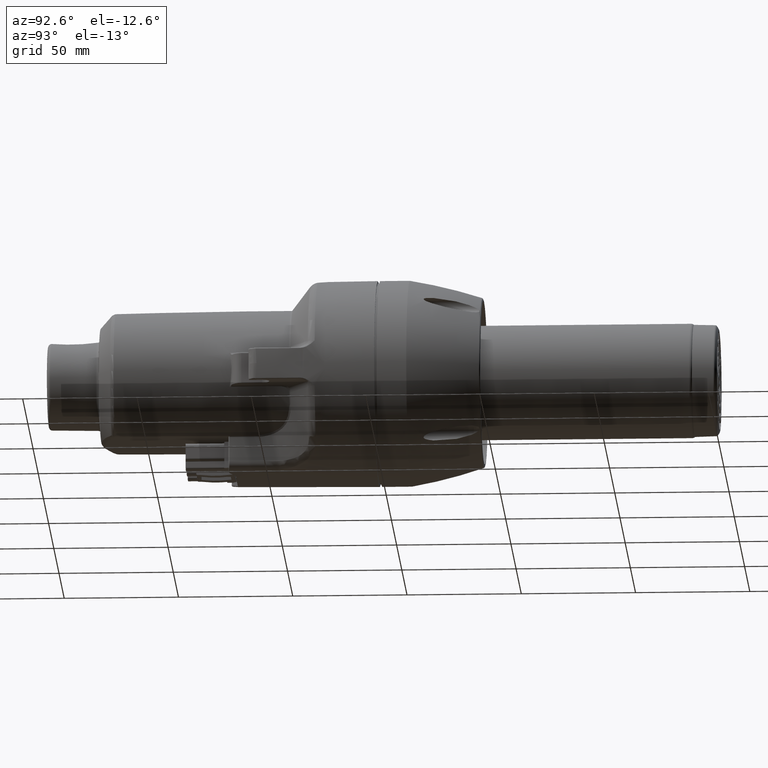
[diagram: clean part render]
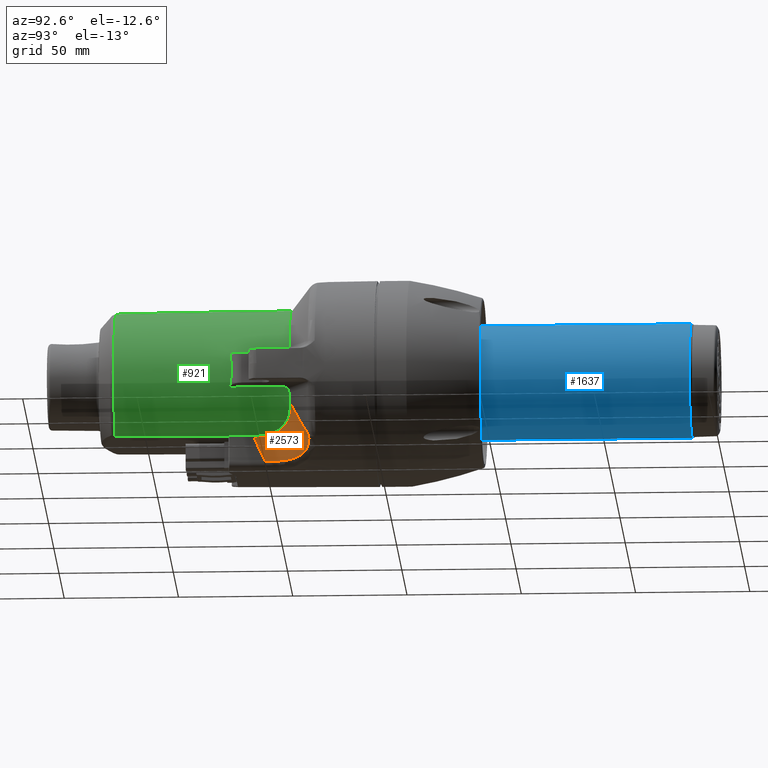
[diagram: same view with three faces highlighted in distinct colors, each labeled with its STEP entity id]
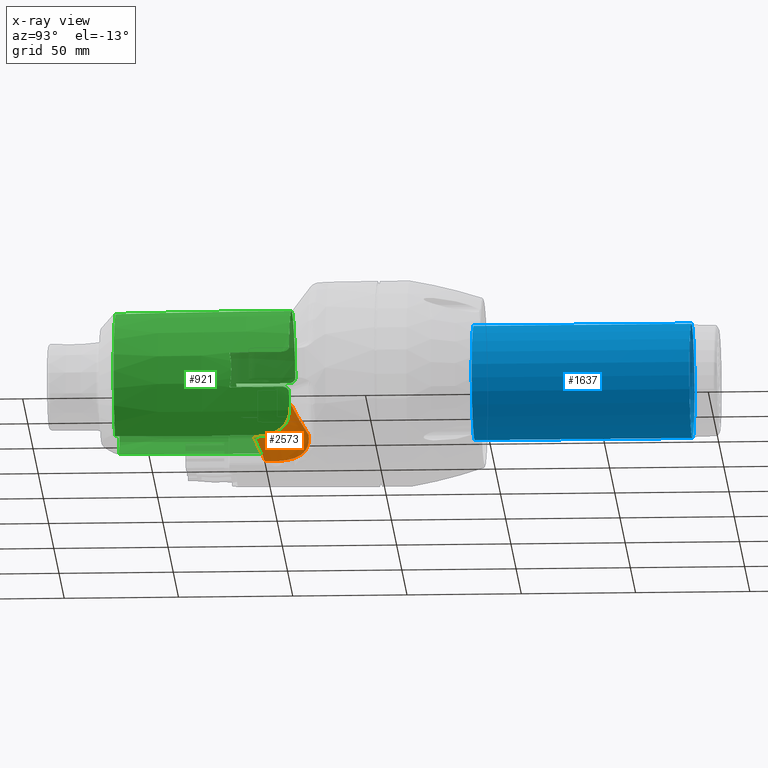
[diagram: x-ray of the same camera — body ghosted, the three highlighted faces saturated]
A machine part, auxiliary view with three faces highlighted in distinct colors.
The next image is the same camera in x-ray (body ghosted, the three faces saturated) — at least one of them is partly hidden behind the body in this view.
Their STEP definitions:

[orange] entity #2573 — the highlighted face is a freeform B-spline surface patch.
#2573 = ADVANCED_FACE( '', ( #5298 ), #5299, .F. );
#5298 = FACE_OUTER_BOUND( '', #12292, .T. );
#5299 = B_SPLINE_SURFACE_WITH_KNOTS( '', 3, 3, ( ( #12293, #12294, #12295, #12296, #12297, #12298, #12299, #12300, #12301, #12302, #12303 ), ( #12304, #12305, #12306, #12307, #12308, #12309, #12310, #12311, #12312, #12313, #12314 ), ( #12315, #12316, #12317, #12318, #12319, #12320, #12321, #12322, #12323, #12324, #12325 ), ( #12326, #12327, #12328, #12329, #12330, #12331, #12332, #12333, #12334, #12335, #12336 ), ( #12337, #12338, #12339, #12340, #12341, #12342, #12343, #12344, #12345, #12346, #12347 ), ( #12348, #12349, #12350, #12351, #12352, #12353, #12354, #12355, #12356, #12357, #12358 ), ( #12359, #12360, #12361, #12362, #12363, #12364, #12365, #12366, #12367, #12368, #12369 ), ( #12370, #12371, #12372, #12373, #12374, #12375, #12376, #12377, #12378, #12379, #12380 ) ), .UNSPECIFIED., .F., .F., .F., ( 4, 1, 1, 1, 1, 4 ), ( 4, 1, 1, 1, 1, 1, 1, 1, 4 ), ( 0.0658825925713800, 0.0692063448598600, 0.0722530988632400, 0.0783466068700100, 0.0844401148767700, 0.0908696247424100 ), ( -0.00940223534175900, 0.125000000000000, 0.250000000000000, 0.375000000000000, 0.500000000000000, 0.625000000000000, 0.750000000000000, 0.875000000000000, 1.01001594926400 ), .UNSPECIFIED. );
#12292 = EDGE_LOOP( '', ( #20414, #20415, #20416, #20417, #20418, #20419, #20420, #20421, #20422, #20423, #20424, #20425, #20426, #20427, #20428, #20429, #20430, #20431, #20432, #20433, #20434, #20435 ) );
#12293 = CARTESIAN_POINT( '', ( 18.1684246374875, -49.0557514513946, -44.2737811512954 ) );
#12294 = CARTESIAN_POINT( '', ( 18.1647619819858, -47.9952551645936, -43.6826036674094 ) );
#12295 = CARTESIAN_POINT( '', ( 18.3359529450490, -45.9483691399080, -42.5406924316784 ) );
#12296 = CARTESIAN_POINT( '', ( 19.0934418903500, -42.9821267466998, -40.8834148990722 ) );
#12297 = CARTESIAN_POINT( '', ( 20.2913727394492, -40.2089856109002, -39.3316428666052 ) );
#12298 = CARTESIAN_POINT( '', ( 21.9244455609374, -37.6115508267606, -37.8757049726194 ) );
#12299 = CARTESIAN_POINT( '', ( 23.9601776437932, -35.2414875165284, -36.5445610212982 ) );
#12300 = CARTESIAN_POINT( '', ( 26.3580764081766, -33.1459378326298, -35.3646883626586 ) );
#12301 = CARTESIAN_POINT( '', ( 29.1428935308858, -31.3190576266058, -34.3327086401604 ) );
#12302 = CARTESIAN_POINT( '', ( 31.2114579349984, -30.3388469448162, -33.7762066757218 ) );
#12303 = CARTESIAN_POINT( '', ( 32.3238240108714, -29.9041898596490, -33.5284865791386 ) );
#12304 = CARTESIAN_POINT( '', ( 18.1636973607394, -49.5959787268434, -43.3022466995498 ) );
#12305 = CARTESIAN_POINT( '', ( 18.1601357666332, -48.5378664623254, -42.7185308465876 ) );
#12306 = CARTESIAN_POINT( '', ( 18.3298393781931, -46.4955860041716, -41.5910409364208 ) );
#12307 = CARTESIAN_POINT( '', ( 19.0804218376550, -43.5353984657574, -39.9543656379466 ) );
#12308 = CARTESIAN_POINT( '', ( 20.2674661815042, -40.7667814597716, -38.4212673195418 ) );
#12309 = CARTESIAN_POINT( '', ( 21.8859440595992, -38.1718797626156, -36.9819170218194 ) );
#12310 = CARTESIAN_POINT( '', ( 23.9039683846270, -35.8018224804892, -35.6646724009926 ) );
#12311 = CARTESIAN_POINT( '', ( 26.2817794173368, -33.7033085369870, -34.4954854714006 ) );
#12312 = CARTESIAN_POINT( '', ( 29.0443992059038, -31.8699935699438, -33.4707327596198 ) );
#12313 = CARTESIAN_POINT( '', ( 31.0975439613536, -30.8829051706168, -32.9162451045384 ) );
#12314 = CARTESIAN_POINT( '', ( 32.2019969476934, -30.4439788436706, -32.6687535038406 ) );
#12315 = CARTESIAN_POINT( '', ( 18.1547382577509, -50.6197257834346, -41.4320452550732 ) );
#12316 = CARTESIAN_POINT( '', ( 18.1513744513695, -49.5662537508858, -40.8632548938500 ) );
#12317 = CARTESIAN_POINT( '', ( 18.3181702744473, -47.5329373267470, -39.7646109466668 ) );
#12318 = CARTESIAN_POINT( '', ( 19.0552464831113, -44.5845365033420, -38.1691832711836 ) );
#12319 = CARTESIAN_POINT( '', ( 20.2209928112533, -41.8247299973120, -36.6735446511638 ) );
#12320 = CARTESIAN_POINT( '', ( 21.8109004127169, -39.2347667402156, -35.2675827122678 ) );
#12321 = CARTESIAN_POINT( '', ( 23.7942317899071, -36.8647307025222, -33.9784764889868 ) );
#12322 = CARTESIAN_POINT( '', ( 26.1326424702468, -34.7604539022450, -32.8311465431890 ) );
#12323 = CARTESIAN_POINT( '', ( 28.8516587946620, -32.9146113972394, -31.8215079337174 ) );
#12324 = CARTESIAN_POINT( '', ( 30.8744511871692, -31.9141202842556, -31.2716103938398 ) );
#12325 = CARTESIAN_POINT( '', ( 31.9633049038440, -31.4668696441130, -31.0248972846254 ) );
#12326 = CARTESIAN_POINT( '', ( 18.1377029017251, -52.5659995099294, -37.7511301435120 ) );
#12327 = CARTESIAN_POINT( '', ( 18.1347392672206, -51.5218127773774, -37.2140380404314 ) );
#12328 = CARTESIAN_POINT( '', ( 18.2956644941706, -49.5064330149014, -36.1766517844486 ) );
#12329 = CARTESIAN_POINT( '', ( 19.0054563679114, -46.5816244368188, -34.6689872939162 ) );
#12330 = CARTESIAN_POINT( '', ( 20.1281433315526, -43.8394674465184, -33.2533743001288 ) );
#12331 = CARTESIAN_POINT( '', ( 21.6602184882699, -41.2594188202658, -31.9192395428766 ) );
#12332 = CARTESIAN_POINT( '', ( 23.5732042358798, -38.8894637507620, -30.6913745163662 ) );
#12333 = CARTESIAN_POINT( '', ( 25.8315415539078, -36.7736825391274, -29.5925973137218 ) );
#12334 = CARTESIAN_POINT( '', ( 28.4616746222824, -34.9027598624636, -28.6179743959916 ) );
#12335 = CARTESIAN_POINT( '', ( 30.4223380678260, -33.8753846301468, -28.0803189862398 ) );
#12336 = CARTESIAN_POINT( '', ( 31.4791669092060, -33.4114171303976, -27.8366912169812 ) );
#12337 = CARTESIAN_POINT( '', ( 18.1178343286048, -54.8353532777406, -33.2063640421556 ) );
#12338 = CARTESIAN_POINT( '', ( 18.1153811493939, -53.8028219827616, -32.7128237777268 ) );
#12339 = CARTESIAN_POINT( '', ( 18.2688409196060, -51.8099559537188, -31.7595941010302 ) );
#12340 = CARTESIAN_POINT( '', ( 18.9439059845786, -48.9147737574552, -30.3728250709416 ) );
#12341 = CARTESIAN_POINT( '', ( 20.0117236399626, -46.1948071467008, -29.0680675716988 ) );
#12342 = CARTESIAN_POINT( '', ( 21.4699737968271, -43.6272641709004, -27.8343877578594 ) );
#12343 = CARTESIAN_POINT( '', ( 23.2929387860308, -41.2574818460854, -26.6935218535658 ) );
#12344 = CARTESIAN_POINT( '', ( 25.4484672978328, -39.1273102149208, -25.6655731969196 ) );
#12345 = CARTESIAN_POINT( '', ( 27.9639826256948, -37.2248833495256, -24.7447023636637 ) );
#12346 = CARTESIAN_POINT( '', ( 29.8440513639750, -36.1636419615986, -24.2287023266768 ) );
#12347 = CARTESIAN_POINT( '', ( 30.8591622023294, -35.6785802652266, -23.9920948500628 ) );
#12348 = CARTESIAN_POINT( '', ( 18.0955259630261, -57.3823727287512, -27.5589726763818 ) );
#12349 = CARTESIAN_POINT( '', ( 18.0937178759692, -56.3642437161944, -27.1279606614200 ) );
#12350 = CARTESIAN_POINT( '', ( 18.2377830366673, -54.3991948090636, -26.2955388948978 ) );
#12351 = CARTESIAN_POINT( '', ( 18.8690940979136, -51.5406420994088, -25.0829848019565 ) );
#12352 = CARTESIAN_POINT( '', ( 19.8676643262759, -48.8481579142838, -23.9392432725810 ) );
#12353 = CARTESIAN_POINT( '', ( 21.2325106630522, -46.2961732623578, -22.8534291902791 ) );
#12354 = CARTESIAN_POINT( '', ( 22.9411837029663, -43.9267290744840, -21.8433673761218 ) );
#12355 = CARTESIAN_POINT( '', ( 24.9655772390682, -41.7788645944786, -20.9256414179858 ) );
#12356 = CARTESIAN_POINT( '', ( 27.3340049417360, -39.8374706243660, -20.0936786690037 ) );
#12357 = CARTESIAN_POINT( '', ( 29.1097934307412, -38.7341719796342, -19.6188788932127 ) );
#12358 = CARTESIAN_POINT( '', ( 30.0706136257340, -38.2228510681658, -19.3981866094496 ) );
#12359 = CARTESIAN_POINT( '', ( 18.0822614540052, -58.8961641593538, -23.6775276817689 ) );
#12360 = CARTESIAN_POINT( '', ( 18.0808845776074, -57.8874410647136, -23.2960834179280 ) );
#12361 = CARTESIAN_POINT( '', ( 18.2186969207959, -55.9405574267640, -22.5594150358346 ) );
#12362 = CARTESIAN_POINT( '', ( 18.8208494456655, -53.1059412899370, -21.4854884794070 ) );
#12363 = CARTESIAN_POINT( '', ( 19.7731917922648, -50.4314482705060, -20.4709019969863 ) );
#12364 = CARTESIAN_POINT( '', ( 21.0755212662341, -47.8896969267138, -19.5052756138590 ) );
#12365 = CARTESIAN_POINT( '', ( 22.7074197245642, -45.5205593076452, -18.6037312022270 ) );
#12366 = CARTESIAN_POINT( '', ( 24.6433013206140, -43.3612012842058, -17.7803876056662 ) );
#12367 = CARTESIAN_POINT( '', ( 26.9118295186514, -41.3943324956500, -17.0285816868579 ) );
#12368 = CARTESIAN_POINT( '', ( 28.6161985987304, -40.2634225807662, -16.5948240742174 ) );
#12369 = CARTESIAN_POINT( '', ( 29.5396195973762, -39.7348186242856, -16.3916053367390 ) );
#12370 = CARTESIAN_POINT( '', ( 18.0760474342845, -59.6051826515756, -21.6566091480692 ) );
#12371 = CARTESIAN_POINT( '', ( 18.0748831946469, -58.6010474586308, -21.3028489596880 ) );
#12372 = CARTESIAN_POINT( '', ( 18.2096183138325, -56.6630238591460, -20.6196556040836 ) );
#12373 = CARTESIAN_POINT( '', ( 18.7974123223976, -53.8400865219484, -19.6233080857184 ) );
#12374 = CARTESIAN_POINT( '', ( 19.7269719475952, -51.1743788858610, -18.6813029223537 ) );
#12375 = CARTESIAN_POINT( '', ( 20.9984527253397, -48.6376357458954, -17.7836816160251 ) );
#12376 = CARTESIAN_POINT( '', ( 22.5924020809373, -46.2686675056346, -16.9441771540061 ) );
#12377 = CARTESIAN_POINT( '', ( 24.4844335817106, -44.1037175661756, -16.1756333191665 ) );
#12378 = CARTESIAN_POINT( '', ( 26.7033247416054, -42.1244170607256, -15.4714901631402 ) );
#12379 = CARTESIAN_POINT( '', ( 28.3720686275806, -40.9800058647926, -15.0631757083001 ) );
#12380 = CARTESIAN_POINT( '', ( 29.2767837032370, -40.4429408141090, -14.8711824766408 ) );
#20414 = ORIENTED_EDGE( '', *, *, #22280, .T. );
#20415 = ORIENTED_EDGE( '', *, *, #22279, .F. );
#20416 = ORIENTED_EDGE( '', *, *, #22278, .T. );
#20417 = ORIENTED_EDGE( '', *, *, #22277, .T. );
#20418 = ORIENTED_EDGE( '', *, *, #22276, .T. );
#20419 = ORIENTED_EDGE( '', *, *, #22275, .T. );
#20420 = ORIENTED_EDGE( '', *, *, #22274, .T. );
#20421 = ORIENTED_EDGE( '', *, *, #22273, .T. );
#20422 = ORIENTED_EDGE( '', *, *, #22272, .T. );
#20423 = ORIENTED_EDGE( '', *, *, #23801, .F. );
#20424 = ORIENTED_EDGE( '', *, *, #23408, .T. );
#20425 = ORIENTED_EDGE( '', *, *, #23407, .T. );
#20426 = ORIENTED_EDGE( '', *, *, #23406, .T. );
#20427 = ORIENTED_EDGE( '', *, *, #23405, .T. );
#20428 = ORIENTED_EDGE( '', *, *, #23404, .T. );
#20429 = ORIENTED_EDGE( '', *, *, #23403, .T. );
#20430 = ORIENTED_EDGE( '', *, *, #23402, .T. );
#20431 = ORIENTED_EDGE( '', *, *, #23401, .T. );
#20432 = ORIENTED_EDGE( '', *, *, #23400, .T. );
#20433 = ORIENTED_EDGE( '', *, *, #23410, .T. );
#20434 = ORIENTED_EDGE( '', *, *, #22425, .F. );
#20435 = ORIENTED_EDGE( '', *, *, #22281, .T. );
#22272 = EDGE_CURVE( '', #26498, #26496, #26499, .T. );
#22273 = EDGE_CURVE( '', #26500, #26498, #26501, .T. );
#22274 = EDGE_CURVE( '', #26502, #26500, #26503, .T. );
#22275 = EDGE_CURVE( '', #26504, #26502, #26505, .T. );
#22276 = EDGE_CURVE( '', #26506, #26504, #26507, .T. );
#22277 = EDGE_CURVE( '', #26508, #26506, #26509, .T. );
#22278 = EDGE_CURVE( '', #26510, #26508, #26511, .T. );
#22279 = EDGE_CURVE( '', #26510, #26512, #26513, .T. );
#22280 = EDGE_CURVE( '', #26514, #26512, #26515, .T. );
#22281 = EDGE_CURVE( '', #26443, #26514, #26516, .T. );
#22425 = EDGE_CURVE( '', #26443, #26747, #26748, .T. );
#23400 = EDGE_CURVE( '', #28227, #28228, #28229, .T. );
#23401 = EDGE_CURVE( '', #28230, #28227, #28231, .T. );
#23402 = EDGE_CURVE( '', #28232, #28230, #28233, .T. );
#23403 = EDGE_CURVE( '', #28234, #28232, #28235, .T. );
#23404 = EDGE_CURVE( '', #28236, #28234, #28237, .T. );
#23405 = EDGE_CURVE( '', #28238, #28236, #28239, .T. );
#23406 = EDGE_CURVE( '', #28240, #28238, #28241, .T. );
#23407 = EDGE_CURVE( '', #28242, #28240, #28243, .T. );
#23408 = EDGE_CURVE( '', #28122, #28242, #28244, .T. );
#23410 = EDGE_CURVE( '', #28228, #26747, #28246, .T. );
#23801 = EDGE_CURVE( '', #28122, #26496, #28748, .T. );
#26443 = VERTEX_POINT( '', #33085 );
#26496 = VERTEX_POINT( '', #33202 );
#26498 = VERTEX_POINT( '', #33204 );
#26499 = B_SPLINE_CURVE_WITH_KNOTS( '', 3, ( #33205, #33206, #33207, #33208, #33209, #33210, #33211, #33212 ), .UNSPECIFIED., .F., .F., ( 4, 1, 1, 1, 1, 4 ), ( 0.000000000000000, 0.195439347482683, 0.393154246862404, 0.593149441766988, 0.795429733261451, 1.00000000000000 ), .UNSPECIFIED. );
#26500 = VERTEX_POINT( '', #33213 );
#26501 = B_SPLINE_CURVE_WITH_KNOTS( '', 3, ( #33214, #33215, #33216, #33217, #33218 ), .UNSPECIFIED., .F., .F., ( 4, 1, 4 ), ( 0.000000000000000, 0.496051811058693, 1.00000000000000 ), .UNSPECIFIED. );
#26502 = VERTEX_POINT( '', #33219 );
#26503 = B_SPLINE_CURVE_WITH_KNOTS( '', 3, ( #33220, #33221, #33222, #33223, #33224 ), .UNSPECIFIED., .F., .F., ( 4, 1, 4 ), ( 0.000000000000000, 0.495659934231824, 1.00000000000000 ), .UNSPECIFIED. );
#26504 = VERTEX_POINT( '', #33225 );
#26505 = B_SPLINE_CURVE_WITH_KNOTS( '', 3, ( #33226, #33227, #33228, #33229, #33230, #33231, #33232, #33233 ), .UNSPECIFIED., .F., .F., ( 4, 1, 1, 1, 1, 4 ), ( 0.000000000000000, 0.195025309134122, 0.392525787173659, 0.592513876198584, 0.795001470851303, 1.00000000000000 ), .UNSPECIFIED. );
#26506 = VERTEX_POINT( '', #33234 );
#26507 = B_SPLINE_CURVE_WITH_KNOTS( '', 3, ( #33235, #33236, #33237, #33238, #33239, #33240, #33241 ), .UNSPECIFIED., .F., .F., ( 4, 1, 1, 1, 4 ), ( 0.000000000000000, 0.244416117383557, 0.492532084422707, 0.744382402259797, 1.00000000000000 ), .UNSPECIFIED. );
#26508 = VERTEX_POINT( '', #33242 );
#26509 = B_SPLINE_CURVE_WITH_KNOTS( '', 3, ( #33243, #33244, #33245, #33246, #33247, #33248, #33249, #33250, #33251, #33252, #33253, #33254, #33255, #33256, #33257 ), .UNSPECIFIED., .F., .F., ( 4, 1, 1, 1, 1, 1, 1, 1, 1, 1, 1, 1, 4 ), ( 0.000000000000000, 0.0575967711430347, 0.115720824553747, 0.174392414482452, 0.233631274909597, 0.293456593027007, 0.353886977958985, 0.414940469806994, 0.476634555684188, 0.602275201917317, 0.731305977655241, 0.863845011439124, 1.00000000000000 ), .UNSPECIFIED. );
#26510 = VERTEX_POINT( '', #33258 );
#26511 = B_SPLINE_CURVE_WITH_KNOTS( '', 3, ( #33259, #33260, #33261, #33262, #33263, #33264, #33265, #33266, #33267, #33268, #33269 ), .UNSPECIFIED., .F., .F., ( 4, 1, 1, 1, 1, 1, 1, 1, 4 ), ( 0.000000000000000, 0.123515548602272, 0.247358070845791, 0.371576096474985, 0.496218286944502, 0.621333291318715, 0.746969670688987, 0.873175837271770, 1.00000000000000 ), .UNSPECIFIED. );
#26512 = VERTEX_POINT( '', #33270 );
#26513 = B_SPLINE_CURVE_WITH_KNOTS( '', 3, ( #33271, #33272, #33273, #33274, #33275, #33276, #33277, #33278, #33279, #33280 ), .UNSPECIFIED., .F., .F., ( 4, 1, 1, 1, 1, 1, 1, 4 ), ( 0.000000000000000, 0.0925515443868600, 0.205034848694232, 0.337296049342189, 0.489232990304530, 0.675135029496886, 0.845304928760453, 1.00000000000000 ), .UNSPECIFIED. );
#26514 = VERTEX_POINT( '', #33281 );
#26515 = B_SPLINE_CURVE_WITH_KNOTS( '', 3, ( #33282, #33283, #33284, #33285, #33286, #33287, #33288, #33289, #33290, #33291 ), .UNSPECIFIED., .F., .F., ( 4, 1, 1, 1, 1, 1, 1, 4 ), ( 0.000000000000000, 0.102887634522310, 0.203652236471677, 0.302293541392606, 0.446117135122540, 0.589718357732539, 0.796471178682779, 1.00000000000000 ), .UNSPECIFIED. );
#26516 = B_SPLINE_CURVE_WITH_KNOTS( '', 3, ( #33292, #33293, #33294, #33295, #33296, #33297, #33298, #33299, #33300, #33301, #33302 ), .UNSPECIFIED., .F., .F., ( 4, 1, 1, 1, 1, 1, 1, 1, 4 ), ( 0.000000000000000, 0.108335472594324, 0.213609989949307, 0.315790097804444, 0.461719000790988, 0.606274389769197, 0.809908121288650, 0.907222273485380, 1.00000000000000 ), .UNSPECIFIED. );
#26747 = VERTEX_POINT( '', #33681 );
#26748 = B_SPLINE_CURVE_WITH_KNOTS( '', 3, ( #33682, #33683, #33684, #33685, #33686, #33687, #33688, #33689, #33690, #33691, #33692, #33693, #33694, #33695 ), .UNSPECIFIED., .F., .F., ( 4, 1, 1, 1, 1, 1, 1, 1, 1, 1, 1, 4 ), ( 0.000000000000000, 0.0561006525867706, 0.113412610883657, 0.171964838013091, 0.231783659203045, 0.292892944134462, 0.355314279777281, 0.419067133249220, 0.484169004575789, 0.647556667030514, 0.819451296819172, 1.00000000000000 ), .UNSPECIFIED. );
#28122 = VERTEX_POINT( '', #36132 );
#28227 = VERTEX_POINT( '', #36277 );
#28228 = VERTEX_POINT( '', #36278 );
#28229 = B_SPLINE_CURVE_WITH_KNOTS( '', 3, ( #36279, #36280, #36281, #36282, #36283, #36284, #36285, #36286 ), .UNSPECIFIED., .F., .F., ( 4, 1, 1, 1, 1, 4 ), ( 0.000000000000000, 0.195448194457399, 0.393117722319185, 0.593065076866262, 0.795342835333012, 1.00000000000000 ), .UNSPECIFIED. );
#28230 = VERTEX_POINT( '', #36287 );
#28231 = B_SPLINE_CURVE_WITH_KNOTS( '', 3, ( #36288, #36289, #36290, #36291, #36292, #36293, #36294 ), .UNSPECIFIED., .F., .F., ( 4, 1, 1, 1, 4 ), ( 0.000000000000000, 0.246157424645953, 0.494793794540423, 0.746035142348098, 1.00000000000000 ), .UNSPECIFIED. );
#28232 = VERTEX_POINT( '', #36295 );
#28233 = B_SPLINE_CURVE_WITH_KNOTS( '', 3, ( #36296, #36297, #36298, #36299, #36300, #36301, #36302 ), .UNSPECIFIED., .F., .F., ( 4, 1, 1, 1, 4 ), ( 0.000000000000000, 0.247645587389076, 0.496769060143258, 0.747509249307482, 1.00000000000000 ), .UNSPECIFIED. );
#28234 = VERTEX_POINT( '', #36303 );
#28235 = B_SPLINE_CURVE_WITH_KNOTS( '', 3, ( #36304, #36305, #36306, #36307, #36308, #36309, #36310, #36311, #36312, #36313, #36314, #36315, #36316, #36317, #36318 ), .UNSPECIFIED., .F., .F., ( 4, 1, 1, 1, 1, 1, 1, 1, 1, 1, 1, 1, 4 ), ( 0.000000000000000, 0.0653240561263718, 0.130149478332842, 0.194507627439950, 0.258430496887511, 0.321950647700520, 0.385101135190299, 0.447915472915809, 0.510427594564488, 0.634155826110507, 0.756804139637258, 0.878656294097557, 1.00000000000000 ), .UNSPECIFIED. );
#28236 = VERTEX_POINT( '', #36319 );
#28237 = B_SPLINE_CURVE_WITH_KNOTS( '', 3, ( #36320, #36321, #36322, #36323, #36324, #36325, #36326, #36327, #36328, #36329, #36330, #36331, #36332, #36333, #36334 ), .UNSPECIFIED., .F., .F., ( 4, 1, 1, 1, 1, 1, 1, 1, 1, 1, 1, 1, 4 ), ( 0.000000000000000, 0.0591867483319927, 0.117255702499612, 0.174211257568126, 0.230058360646903, 0.284802518053506, 0.416774188526458, 0.543626322558937, 0.639136144978562, 0.732445025091963, 0.823633206095682, 0.912787161140881, 1.00000000000000 ), .UNSPECIFIED. );
#28238 = VERTEX_POINT( '', #36335 );
#28239 = B_SPLINE_CURVE_WITH_KNOTS( '', 3, ( #36336, #36337, #36338, #36339, #36340, #36341, #36342, #36343 ), .UNSPECIFIED., .F., .F., ( 4, 1, 1, 1, 1, 4 ), ( 0.000000000000000, 0.208333898818173, 0.412495904120526, 0.612490258623840, 0.808322577216559, 1.00000000000000 ), .UNSPECIFIED. );
#28240 = VERTEX_POINT( '', #36344 );
#28241 = B_SPLINE_CURVE_WITH_KNOTS( '', 3, ( #36345, #36346, #36347, #36348, #36349, #36350, #36351, #36352 ), .UNSPECIFIED., .F., .F., ( 4, 1, 1, 1, 1, 4 ), ( 0.000000000000000, 0.207973032319962, 0.411961271116626, 0.611962574967173, 0.807975626667186, 1.00000000000000 ), .UNSPECIFIED. );
#28242 = VERTEX_POINT( '', #36353 );
#28243 = B_SPLINE_CURVE_WITH_KNOTS( '', 3, ( #36354, #36355, #36356, #36357, #36358, #36359, #36360, #36361 ), .UNSPECIFIED., .F., .F., ( 4, 1, 1, 1, 1, 4 ), ( 0.000000000000000, 0.209982221011396, 0.414985412748535, 0.614997218920737, 0.810005834490408, 1.00000000000000 ), .UNSPECIFIED. );
#28244 = B_SPLINE_CURVE_WITH_KNOTS( '', 3, ( #36362, #36363, #36364, #36365, #36366, #36367, #36368, #36369, #36370 ), .UNSPECIFIED., .F., .F., ( 4, 1, 1, 1, 1, 1, 4 ), ( 0.000000000000000, 0.176173526889779, 0.348559271760653, 0.517145771134436, 0.681921908229198, 0.842876852400304, 1.00000000000000 ), .UNSPECIFIED. );
#28246 = B_SPLINE_CURVE_WITH_KNOTS( '', 3, ( #36378, #36379, #36380, #36381, #36382, #36383, #36384, #36385 ), .UNSPECIFIED., .F., .F., ( 4, 1, 1, 1, 1, 4 ), ( 0.000000000000000, 0.193881364827191, 0.390781700213390, 0.590743981753125, 0.793805891530965, 1.00000000000000 ), .UNSPECIFIED. );
#28748 = B_SPLINE_CURVE_WITH_KNOTS( '', 3, ( #37397, #37398, #37399, #37400, #37401, #37402 ), .UNSPECIFIED., .F., .F., ( 4, 1, 1, 4 ), ( 0.000000000000000, 0.466724591850000, 0.981417096196300, 1.00000000000000 ), .UNSPECIFIED. );
#33085 = CARTESIAN_POINT( '', ( 29.1342283248228, -40.4030872124092, -15.2560756383338 ) );
#33202 = CARTESIAN_POINT( '', ( 18.0963400734984, -57.1605210292754, -27.3491290789502 ) );
#33204 = CARTESIAN_POINT( '', ( 18.1954815250526, -55.0573265990204, -27.2713688769398 ) );
#33205 = CARTESIAN_POINT( '', ( 18.1954815250516, -55.0573265990203, -27.2713688769397 ) );
#33206 = CARTESIAN_POINT( '', ( 18.1842948041486, -55.1939364480738, -27.2795741326416 ) );
#33207 = CARTESIAN_POINT( '', ( 18.1617911123990, -55.4687467307030, -27.2960801800027 ) );
#33208 = CARTESIAN_POINT( '', ( 18.1359480421888, -55.8842494645253, -27.3156229400375 ) );
#33209 = CARTESIAN_POINT( '', ( 18.1159652084956, -56.3050288487089, -27.3312994947300 ) );
#33210 = CARTESIAN_POINT( '', ( 18.1020056521338, -56.7310276921468, -27.3429905255522 ) );
#33211 = CARTESIAN_POINT( '', ( 18.0982356728713, -57.0168203848904, -27.3470752308398 ) );
#33212 = CARTESIAN_POINT( '', ( 18.0963400734977, -57.1605210292754, -27.3491290789502 ) );
#33213 = CARTESIAN_POINT( '', ( 18.3015897434935, -54.0558057149948, -27.1943792799414 ) );
#33214 = CARTESIAN_POINT( '', ( 18.3015897434925, -54.0558057149947, -27.1943792799414 ) );
#33215 = CARTESIAN_POINT( '', ( 18.2816374412936, -54.2210232574224, -27.2087905414361 ) );
#33216 = CARTESIAN_POINT( '', ( 18.2414152270933, -54.5540883501092, -27.2378424694272 ) );
#33217 = CARTESIAN_POINT( '', ( 18.2108731496604, -54.8886997766274, -27.2601347317266 ) );
#33218 = CARTESIAN_POINT( '', ( 18.1954815250516, -55.0573265990203, -27.2713688769397 ) );
#33219 = CARTESIAN_POINT( '', ( 18.4421870607033, -53.0897246098228, -27.0930533541456 ) );
#33220 = CARTESIAN_POINT( '', ( 18.4421870607034, -53.0897246098228, -27.0930533541456 ) );
#33221 = CARTESIAN_POINT( '', ( 18.4166384026552, -53.2488278711510, -27.1114611827028 ) );
#33222 = CARTESIAN_POINT( '', ( 18.3650936715123, -53.5698206533794, -27.1485992027161 ) );
#33223 = CARTESIAN_POINT( '', ( 18.3228798599780, -53.8928759735654, -27.1790312029446 ) );
#33224 = CARTESIAN_POINT( '', ( 18.3015897434925, -54.0558057149947, -27.1943792799414 ) );
#33225 = CARTESIAN_POINT( '', ( 18.8175498550714, -51.2661852074550, -26.8205520893702 ) );
#33226 = CARTESIAN_POINT( '', ( 18.8175498550717, -51.2661852074551, -26.8205520893703 ) );
#33227 = CARTESIAN_POINT( '', ( 18.7890883349826, -51.3833671310872, -26.8413524946013 ) );
#33228 = CARTESIAN_POINT( '', ( 18.7318040746641, -51.6192181958565, -26.8832172939605 ) );
#33229 = CARTESIAN_POINT( '', ( 18.6522575072281, -51.9777705112057, -26.9410896447303 ) );
#33230 = CARTESIAN_POINT( '', ( 18.5770121458315, -52.3425719782377, -26.9956773385319 ) );
#33231 = CARTESIAN_POINT( '', ( 18.5062324297385, -52.7136162959082, -27.0468775883854 ) );
#33232 = CARTESIAN_POINT( '', ( 18.4636230369156, -52.9638412088564, -27.0775983316931 ) );
#33233 = CARTESIAN_POINT( '', ( 18.4421870607034, -53.0897246098228, -27.0930533541456 ) );
#33234 = CARTESIAN_POINT( '', ( 19.3025071538315, -49.5940923300574, -26.4611746006082 ) );
#33235 = CARTESIAN_POINT( '', ( 19.3025071538320, -49.5940923300576, -26.4611746006083 ) );
#33236 = CARTESIAN_POINT( '', ( 19.2585217916207, -49.7281619067601, -26.4941220015624 ) );
#33237 = CARTESIAN_POINT( '', ( 19.1698852386553, -49.9983305387547, -26.5605155448441 ) );
#33238 = CARTESIAN_POINT( '', ( 19.0459503679974, -50.4117808776676, -26.6525188939635 ) );
#33239 = CARTESIAN_POINT( '', ( 18.9270487994360, -50.8346573726860, -26.7403122477623 ) );
#33240 = CARTESIAN_POINT( '', ( 18.8542296984510, -51.1216324587046, -26.7936734300366 ) );
#33241 = CARTESIAN_POINT( '', ( 18.8175498550717, -51.2661852074551, -26.8205520893703 ) );
#33242 = CARTESIAN_POINT( '', ( 21.9514805448657, -44.4962720317636, -24.2839434343350 ) );
#33243 = CARTESIAN_POINT( '', ( 21.9514805448607, -44.4962720317606, -24.2839434343337 ) );
#33244 = CARTESIAN_POINT( '', ( 21.8881992140174, -44.5792300327616, -24.3407394092879 ) );
#33245 = CARTESIAN_POINT( '', ( 21.7610572295152, -44.7459054919697, -24.4548513103995 ) );
#33246 = CARTESIAN_POINT( '', ( 21.5742737274060, -45.0055107090088, -24.6195491153672 ) );
#33247 = CARTESIAN_POINT( '', ( 21.3895791955283, -45.2735392189959, -24.7804276443194 ) );
#33248 = CARTESIAN_POINT( '', ( 21.2075443217081, -45.5506360095858, -24.9369017546163 ) );
#33249 = CARTESIAN_POINT( '', ( 21.0283082766524, -45.8366388290503, -25.0890517627022 ) );
#33250 = CARTESIAN_POINT( '', ( 20.8521289959108, -46.1315945476203, -25.2367700310655 ) );
#33251 = CARTESIAN_POINT( '', ( 20.6792290470683, -46.4354860624776, -25.3799972925722 ) );
#33252 = CARTESIAN_POINT( '', ( 20.4519563694140, -46.8552565106955, -25.5660491945386 ) );
#33253 = CARTESIAN_POINT( '', ( 20.1765501130295, -47.4041740932119, -25.7874344931093 ) );
#33254 = CARTESIAN_POINT( '', ( 19.8644898002882, -48.0974166888492, -26.0327869829352 ) );
#33255 = CARTESIAN_POINT( '', ( 19.5683714843609, -48.8280980368481, -26.2610993695887 ) );
#33256 = CARTESIAN_POINT( '', ( 19.3919201297979, -49.3364803774031, -26.3938871920758 ) );
#33257 = CARTESIAN_POINT( '', ( 19.3025071538320, -49.5940923300576, -26.4611746006083 ) );
#33258 = CARTESIAN_POINT( '', ( 23.5387536042910, -42.7845235890240, -22.7629231073114 ) );
#33259 = CARTESIAN_POINT( '', ( 23.5387602675494, -42.7845286056470, -22.7629252662057 ) );
#33260 = CARTESIAN_POINT( '', ( 23.4705788363358, -42.8460610073829, -22.8320294316827 ) );
#33261 = CARTESIAN_POINT( '', ( 23.3340354822127, -42.9692887010630, -22.9704206970191 ) );
#33262 = CARTESIAN_POINT( '', ( 23.1311690595105, -43.1637775260824, -23.1719206077582 ) );
#33263 = CARTESIAN_POINT( '', ( 22.9296562426907, -43.3656510829353, -23.3692241010160 ) );
#33264 = CARTESIAN_POINT( '', ( 22.7298262722774, -43.5756383487896, -23.5618195886559 ) );
#33265 = CARTESIAN_POINT( '', ( 22.5317975779050, -43.7935443497220, -23.7498144322054 ) );
#33266 = CARTESIAN_POINT( '', ( 22.3358469858212, -44.0196061064366, -23.9329836266951 ) );
#33267 = CARTESIAN_POINT( '', ( 22.1418355072840, -44.2532233029038, -24.1117980209601 ) );
#33268 = CARTESIAN_POINT( '', ( 22.0150354303141, -44.4151239811638, -24.2264682737758 ) );
#33269 = CARTESIAN_POINT( '', ( 21.9514805448607, -44.4962720317606, -24.2839434343337 ) );
#33270 = CARTESIAN_POINT( '', ( 25.2554509950015, -41.5393993009184, -20.8819036673157 ) );
#33271 = CARTESIAN_POINT( '', ( 23.5387469474753, -42.7845185765878, -22.7629209520895 ) );
#33272 = CARTESIAN_POINT( '', ( 23.5909280865887, -42.7385548509463, -22.7096179647516 ) );
#33273 = CARTESIAN_POINT( '', ( 23.7065280156196, -42.6367287215741, -22.5915327397435 ) );
#33274 = CARTESIAN_POINT( '', ( 23.8979973890946, -42.4766400342574, -22.3922977699834 ) );
#33275 = CARTESIAN_POINT( '', ( 24.1242778849442, -42.2962745021966, -22.1528988196498 ) );
#33276 = CARTESIAN_POINT( '', ( 24.3937071506700, -42.0942364412834, -21.8618470623791 ) );
#33277 = CARTESIAN_POINT( '', ( 24.6858405111997, -41.8909517221942, -21.5382638199428 ) );
#33278 = CARTESIAN_POINT( '', ( 24.9799155036467, -41.7011427274321, -21.2044666885402 ) );
#33279 = CARTESIAN_POINT( '', ( 25.1665627397078, -41.5915676266841, -20.9859524274329 ) );
#33280 = CARTESIAN_POINT( '', ( 25.2554409201851, -41.5393898619038, -20.8818997216688 ) );
#33281 = CARTESIAN_POINT( '', ( 27.1250661949966, -40.7310757805862, -18.4694378788584 ) );
#33282 = CARTESIAN_POINT( '', ( 27.1250661949941, -40.7310757805832, -18.4694378788572 ) );
#33283 = CARTESIAN_POINT( '', ( 27.0631601399615, -40.7499990501103, -18.5564753949164 ) );
#33284 = CARTESIAN_POINT( '', ( 26.9406254289919, -40.7874551173864, -18.7287544533737 ) );
#33285 = CARTESIAN_POINT( '', ( 26.7567227101720, -40.8494017494314, -18.9815860491944 ) );
#33286 = CARTESIAN_POINT( '', ( 26.5461712919131, -40.9254557062844, -19.2658881203298 ) );
#33287 = CARTESIAN_POINT( '', ( 26.3068487607698, -41.0197131544244, -19.5814104071910 ) );
#33288 = CARTESIAN_POINT( '', ( 25.9974689507860, -41.1539348624044, -19.9785558022347 ) );
#33289 = CARTESIAN_POINT( '', ( 25.6474120684084, -41.3212222055873, -20.4153722618470 ) );
#33290 = CARTESIAN_POINT( '', ( 25.3854251686427, -41.4670618973810, -20.7272126431125 ) );
#33291 = CARTESIAN_POINT( '', ( 25.2554610673605, -41.5394087379756, -20.8819076104216 ) );
#33292 = CARTESIAN_POINT( '', ( 29.1342275269959, -40.4030874265495, -15.2560772335737 ) );
#33293 = CARTESIAN_POINT( '', ( 29.0674773835247, -40.4057810614997, -15.3763482063462 ) );
#33294 = CARTESIAN_POINT( '', ( 28.9358630827371, -40.4110922243245, -15.6134919660946 ) );
#33295 = CARTESIAN_POINT( '', ( 28.7366156498350, -40.4250805285770, -15.9612684160832 ) );
#33296 = CARTESIAN_POINT( '', ( 28.5094336256203, -40.4465898330687, -16.3477052601238 ) );
#33297 = CARTESIAN_POINT( '', ( 28.2508767139079, -40.4795214797474, -16.7728869408705 ) );
#33298 = CARTESIAN_POINT( '', ( 27.9174801216884, -40.5345266803448, -17.3017126477391 ) );
#33299 = CARTESIAN_POINT( '', ( 27.6079046236135, -40.6008157815952, -17.7707861582198 ) );
#33300 = CARTESIAN_POINT( '', ( 27.3291077880319, -40.6715639106188, -18.1798252461666 ) );
#33301 = CARTESIAN_POINT( '', ( 27.1919893099797, -40.7115566244282, -18.3744485228623 ) );
#33302 = CARTESIAN_POINT( '', ( 27.1250661949941, -40.7310757805832, -18.4694378788572 ) );
#33681 = CARTESIAN_POINT( '', ( 31.4961475581758, -32.4842083139274, -29.5776932881578 ) );
#33682 = CARTESIAN_POINT( '', ( 29.1342274244668, -40.4030872757197, -15.2560771798849 ) );
#33683 = CARTESIAN_POINT( '', ( 29.1813728467515, -40.2717552734073, -15.5321684408217 ) );
#33684 = CARTESIAN_POINT( '', ( 29.2766816388238, -40.0062555940266, -16.0903122288388 ) );
#33685 = CARTESIAN_POINT( '', ( 29.4212335662537, -39.5925818860638, -16.9312523487613 ) );
#33686 = CARTESIAN_POINT( '', ( 29.5684782574408, -39.1624379003223, -17.7866890878659 ) );
#33687 = CARTESIAN_POINT( '', ( 29.7181648325571, -38.7149567269857, -18.6566588938305 ) );
#33688 = CARTESIAN_POINT( '', ( 29.8700083006268, -38.2503772884778, -19.5416905459717 ) );
#33689 = CARTESIAN_POINT( '', ( 30.0237445013579, -37.7686350264823, -20.4421321464819 ) );
#33690 = CARTESIAN_POINT( '', ( 30.1791103899993, -37.2697394427918, -21.3583332547384 ) );
#33691 = CARTESIAN_POINT( '', ( 30.4136742172345, -36.4976602132663, -22.7532292670813 ) );
#33692 = CARTESIAN_POINT( '', ( 30.7274167177938, -35.4174291499412, -24.6530468910583 ) );
#33693 = CARTESIAN_POINT( '', ( 31.1168664821725, -33.9934382929181, -27.0844442358383 ) );
#33694 = CARTESIAN_POINT( '', ( 31.3676678338706, -32.9954534402595, -28.7331162246263 ) );
#33695 = CARTESIAN_POINT( '', ( 31.4961476618860, -32.4842084993395, -29.5776933855510 ) );
#36132 = CARTESIAN_POINT( '', ( 18.1402775382827, -52.1247819806568, -38.0293584215476 ) );
#36277 = CARTESIAN_POINT( '', ( 29.2062301422870, -32.6088436738002, -32.1015166496704 ) );
#36278 = CARTESIAN_POINT( '', ( 30.3264365178972, -32.4682686847450, -30.9338392410878 ) );
#36279 = CARTESIAN_POINT( '', ( 29.2062301422884, -32.6088436738022, -32.1015166496715 ) );
#36280 = CARTESIAN_POINT( '', ( 29.2806197322028, -32.5949475064151, -32.0274732729042 ) );
#36281 = CARTESIAN_POINT( '', ( 29.4302443743367, -32.5669972371002, -31.8785449918915 ) );
#36282 = CARTESIAN_POINT( '', ( 29.6536930903444, -32.5332087322932, -31.6501615817159 ) );
#36283 = CARTESIAN_POINT( '', ( 29.8778449972006, -32.5051446789012, -31.4165609543317 ) );
#36284 = CARTESIAN_POINT( '', ( 30.1026579125426, -32.4828594229385, -31.1776989242702 ) );
#36285 = CARTESIAN_POINT( '', ( 30.2515534450124, -32.4731511859517, -31.0154420484670 ) );
#36286 = CARTESIAN_POINT( '', ( 30.3264365178934, -32.4682686847391, -30.9338392410848 ) );
#36287 = CARTESIAN_POINT( '', ( 28.1388084152094, -32.8884805878044, -33.1095601274326 ) );
#36288 = CARTESIAN_POINT( '', ( 28.1388084152095, -32.8884805878045, -33.1095601274327 ) );
#36289 = CARTESIAN_POINT( '', ( 28.2272992996189, -32.8600796041567, -33.0294389909423 ) );
#36290 = CARTESIAN_POINT( '', ( 28.4051722219659, -32.8029916228050, -32.8683898525545 ) );
#36291 = CARTESIAN_POINT( '', ( 28.6715434224101, -32.7294199174275, -32.6194662922026 ) );
#36292 = CARTESIAN_POINT( '', ( 28.9392234827686, -32.6633138150798, -32.3641021215561 ) );
#36293 = CARTESIAN_POINT( '', ( 29.1169086289010, -32.6270655243811, -32.1893591468753 ) );
#36294 = CARTESIAN_POINT( '', ( 29.2062301422884, -32.6088436738022, -32.1015166496715 ) );
#36295 = CARTESIAN_POINT( '', ( 27.1200316724774, -33.2954915769050, -33.9839922627406 ) );
#36296 = CARTESIAN_POINT( '', ( 27.1200316724714, -33.2954915768984, -33.9839922627370 ) );
#36297 = CARTESIAN_POINT( '', ( 27.2043368953300, -33.2567323462319, -33.9145757011997 ) );
#36298 = CARTESIAN_POINT( '', ( 27.3734504530001, -33.1789825797487, -33.7753283178853 ) );
#36299 = CARTESIAN_POINT( '', ( 27.6277085098905, -33.0737008033487, -33.5593598351371 ) );
#36300 = CARTESIAN_POINT( '', ( 27.8831944133247, -32.9755258577335, -33.3378873883619 ) );
#36301 = CARTESIAN_POINT( '', ( 28.0534063789433, -32.9175628886349, -33.1858455142841 ) );
#36302 = CARTESIAN_POINT( '', ( 28.1388084152095, -32.8884805878045, -33.1095601274327 ) );
#36303 = CARTESIAN_POINT( '', ( 23.2986155461936, -36.2788697919756, -36.5821434198442 ) );
#36304 = CARTESIAN_POINT( '', ( 23.2986155461979, -36.2788697919785, -36.5821434198458 ) );
#36305 = CARTESIAN_POINT( '', ( 23.3736804720344, -36.1935798912727, -36.5408635436509 ) );
#36306 = CARTESIAN_POINT( '', ( 23.5232373354327, -36.0236511277795, -36.4586188902873 ) );
#36307 = CARTESIAN_POINT( '', ( 23.7522873728855, -35.7786056872362, -36.3279093959675 ) );
#36308 = CARTESIAN_POINT( '', ( 23.9834552490457, -35.5421076124409, -36.1924822781939 ) );
#36309 = CARTESIAN_POINT( '', ( 24.2169852757663, -35.3147770049006, -36.0518221978917 ) );
#36310 = CARTESIAN_POINT( '', ( 24.4525991470793, -35.0964437972266, -35.9061085695636 ) );
#36311 = CARTESIAN_POINT( '', ( 24.6901550955368, -34.8871430338605, -35.7553315406743 ) );
#36312 = CARTESIAN_POINT( '', ( 24.9294803709711, -34.6868413750136, -35.5995297219993 ) );
#36313 = CARTESIAN_POINT( '', ( 25.2493692735768, -34.4328500481719, -35.3860073719072 ) );
#36314 = CARTESIAN_POINT( '', ( 25.6522852983410, -34.1377501184652, -35.1072241931636 ) );
#36315 = CARTESIAN_POINT( '', ( 26.1400153589463, -33.8198579397013, -34.7526167075902 ) );
#36316 = CARTESIAN_POINT( '', ( 26.6296151403497, -33.5353711333367, -34.3805155567364 ) );
#36317 = CARTESIAN_POINT( '', ( 26.9567875010549, -33.3753399035058, -34.1159823412448 ) );
#36318 = CARTESIAN_POINT( '', ( 27.1200316724714, -33.2954915768984, -33.9839922627370 ) );
#36319 = CARTESIAN_POINT( '', ( 19.8666049124409, -42.2691948817358, -38.0216850509914 ) );
#36320 = CARTESIAN_POINT( '', ( 19.8666049124395, -42.2691948817353, -38.0216850509912 ) );
#36321 = CARTESIAN_POINT( '', ( 19.9157764410042, -42.1385825382471, -38.0082184431769 ) );
#36322 = CARTESIAN_POINT( '', ( 20.0131908502650, -41.8798245810618, -37.9815395563643 ) );
#36323 = CARTESIAN_POINT( '', ( 20.1661424859042, -41.4991448561901, -37.9364822312989 ) );
#36324 = CARTESIAN_POINT( '', ( 20.3220026132701, -41.1286863969416, -37.8882665224316 ) );
#36325 = CARTESIAN_POINT( '', ( 20.4810533039109, -40.7687103166200, -37.8365818636173 ) );
#36326 = CARTESIAN_POINT( '', ( 20.7199882959596, -40.2524701173672, -37.7553386405868 ) );
#36327 = CARTESIAN_POINT( '', ( 21.0480875497101, -39.5964914580403, -37.6355879613635 ) );
#36328 = CARTESIAN_POINT( '', ( 21.4490758345187, -38.8762574000721, -37.4752555613362 ) );
#36329 = CARTESIAN_POINT( '', ( 21.8295168001456, -38.2534459679420, -37.3113521583717 ) );
#36330 = CARTESIAN_POINT( '', ( 22.1842642285874, -37.7165931114381, -37.1494414046909 ) );
#36331 = CARTESIAN_POINT( '', ( 22.5475472978273, -37.2089058754867, -36.9742217452606 ) );
#36332 = CARTESIAN_POINT( '', ( 22.9169606438529, -36.7284806261789, -36.7875244234647 ) );
#36333 = CARTESIAN_POINT( '', ( 23.1723341368605, -36.4276363594911, -36.6500995824125 ) );
#36334 = CARTESIAN_POINT( '', ( 23.2986155461979, -36.2788697919785, -36.5821434198458 ) );
#36335 = CARTESIAN_POINT( '', ( 19.1832600130350, -44.3960380862324, -38.1744388901110 ) );
#36336 = CARTESIAN_POINT( '', ( 19.1832600130357, -44.3960380862326, -38.1744388901111 ) );
#36337 = CARTESIAN_POINT( '', ( 19.2251672914587, -44.2464088448281, -38.1670497712704 ) );
#36338 = CARTESIAN_POINT( '', ( 19.3081426536076, -43.9501466927438, -38.1524195009488 ) );
#36339 = CARTESIAN_POINT( '', ( 19.4409294932798, -43.5133076425833, -38.1253106113976 ) );
#36340 = CARTESIAN_POINT( '', ( 19.5779689227543, -43.0878695556926, -38.0946843596492 ) );
#36341 = CARTESIAN_POINT( '', ( 19.7189021294953, -42.6737943110369, -38.0606823204920 ) );
#36342 = CARTESIAN_POINT( '', ( 19.8177238416482, -42.4030938709864, -38.0345908896838 ) );
#36343 = CARTESIAN_POINT( '', ( 19.8666049124395, -42.2691948817353, -38.0216850509912 ) );
#36344 = CARTESIAN_POINT( '', ( 18.6429010457820, -46.7656440328378, -38.2292363946890 ) );
#36345 = CARTESIAN_POINT( '', ( 18.6429010457822, -46.7656440328379, -38.2292363946890 ) );
#36346 = CARTESIAN_POINT( '', ( 18.6741692353498, -46.5999704205273, -38.2286245553387 ) );
#36347 = CARTESIAN_POINT( '', ( 18.7361065114286, -46.2717975263947, -38.2274125995689 ) );
#36348 = CARTESIAN_POINT( '', ( 18.8387858879253, -45.7864518075190, -38.2202030765160 ) );
#36349 = CARTESIAN_POINT( '', ( 18.9472428774384, -45.3124151280047, -38.2091173639952 ) );
#36350 = CARTESIAN_POINT( '', ( 19.0610956922179, -44.8497013857876, -38.1943171039069 ) );
#36351 = CARTESIAN_POINT( '', ( 19.1428185855623, -44.5462193445857, -38.1810193985291 ) );
#36352 = CARTESIAN_POINT( '', ( 19.1832600130357, -44.3960380862326, -38.1744388901111 ) );
#36353 = CARTESIAN_POINT( '', ( 18.2836677908437, -49.3531876553780, -38.1806981281386 ) );
#36354 = CARTESIAN_POINT( '', ( 18.2836677908424, -49.3531876553779, -38.1806981281385 ) );
#36355 = CARTESIAN_POINT( '', ( 18.3019840531993, -49.1712689045907, -38.1871417337897 ) );
#36356 = CARTESIAN_POINT( '', ( 18.3381822687320, -48.8117450005265, -38.1998761564369 ) );
#36357 = CARTESIAN_POINT( '', ( 18.4036536707755, -48.2800679343915, -38.2135347989982 ) );
#36358 = CARTESIAN_POINT( '', ( 18.4760701271106, -47.7624090470026, -38.2230535910645 ) );
#36359 = CARTESIAN_POINT( '', ( 18.5548773736860, -47.2588284809237, -38.2286427864957 ) );
#36360 = CARTESIAN_POINT( '', ( 18.6138157015483, -46.9286051897836, -38.2290402508764 ) );
#36361 = CARTESIAN_POINT( '', ( 18.6429010457822, -46.7656440328379, -38.2292363946890 ) );
#36362 = CARTESIAN_POINT( '', ( 18.1402863017380, -52.1247820571376, -38.0293584215493 ) );
#36363 = CARTESIAN_POINT( '', ( 18.1424078314332, -51.9619104585336, -38.0407146027828 ) );
#36364 = CARTESIAN_POINT( '', ( 18.1466052773187, -51.6396690480214, -38.0631828040534 ) );
#36365 = CARTESIAN_POINT( '', ( 18.1618661430459, -51.1615187181018, -38.0929580760166 ) );
#36366 = CARTESIAN_POINT( '', ( 18.1831133344305, -50.6940168639894, -38.1196073414368 ) );
#36367 = CARTESIAN_POINT( '', ( 18.2107303790376, -50.2372997261451, -38.1429815489813 ) );
#36368 = CARTESIAN_POINT( '', ( 18.2435652031546, -49.7914456517757, -38.1635306642217 ) );
#36369 = CARTESIAN_POINT( '', ( 18.2704080510051, -49.4980956862281, -38.1750217835850 ) );
#36370 = CARTESIAN_POINT( '', ( 18.2836677908423, -49.3531876553779, -38.1806981281385 ) );
#36378 = CARTESIAN_POINT( '', ( 30.3264365178934, -32.4682686847391, -30.9338392410847 ) );
#36379 = CARTESIAN_POINT( '', ( 30.4041934304475, -32.4644214895772, -30.8481094321634 ) );
#36380 = CARTESIAN_POINT( '', ( 30.5609180260181, -32.4566671937080, -30.6753148960866 ) );
#36381 = CARTESIAN_POINT( '', ( 30.7941969749908, -32.4536795675286, -30.4105589176749 ) );
#36382 = CARTESIAN_POINT( '', ( 31.0282534975572, -32.4569410064766, -30.1392517877740 ) );
#36383 = CARTESIAN_POINT( '', ( 31.2630065069230, -32.4665321330000, -29.8613528675132 ) );
#36384 = CARTESIAN_POINT( '', ( 31.4180381607380, -32.4782858973629, -29.6727274947513 ) );
#36385 = CARTESIAN_POINT( '', ( 31.4961472470254, -32.4842077576555, -29.5776929959604 ) );
#37397 = CARTESIAN_POINT( '', ( 18.1402775382827, -52.1247819806568, -38.0293584215476 ) );
#37398 = CARTESIAN_POINT( '', ( 18.1328991213631, -52.9702648153672, -36.3929950061174 ) );
#37399 = CARTESIAN_POINT( '', ( 18.1178485038749, -54.6964504646400, -32.9308964865132 ) );
#37400 = CARTESIAN_POINT( '', ( 18.1036911842674, -56.3181619031766, -29.3478304702872 ) );
#37401 = CARTESIAN_POINT( '', ( 18.0965870928368, -57.1322154169002, -27.4164557622290 ) );
#37402 = CARTESIAN_POINT( '', ( 18.0963400734984, -57.1605210292754, -27.3491290789502 ) );

[blue] entity #1637 — the highlighted cylindrical surface (bore or boss wall) has radius 25 mm, axis along (-0, 1, -0).
#1637 = ADVANCED_FACE( '', ( #3815, #3816 ), #3817, .T. );
#3815 = FACE_OUTER_BOUND( '', #8242, .T. );
#3816 = FACE_OUTER_BOUND( '', #8243, .T. );
#3817 = CYLINDRICAL_SURFACE( '', #8244, 24.9999999999991 );
#8242 = EDGE_LOOP( '', ( #16095 ) );
#8243 = EDGE_LOOP( '', ( #16096 ) );
#8244 = AXIS2_PLACEMENT_3D( '', #16097, #16098, #16099 );
#16095 = ORIENTED_EDGE( '', *, *, #23004, .F. );
#16096 = ORIENTED_EDGE( '', *, *, #22369, .F. );
#16097 = CARTESIAN_POINT( '', ( -3.86526975302491E-011, -23.0000000000009, -4.10967172027878E-011 ) );
#16098 = DIRECTION( '', ( -9.11655773063631E-017, 1.00000000000000, -4.56102135419189E-017 ) );
#16099 = DIRECTION( '', ( 9.23740252298587E-017, -4.56102135419189E-017, -1.00000000000000 ) );
#22369 = EDGE_CURVE( '', #26660, #26660, #26661, .T. );
#23004 = EDGE_CURVE( '', #27635, #27635, #27636, .T. );
#26660 = VERTEX_POINT( '', #33551 );
#26661 = CIRCLE( '', #33552, 24.9999999999991 );
#27635 = VERTEX_POINT( '', #35395 );
#27636 = CIRCLE( '', #35396, 24.9999999999991 );
#33551 = CARTESIAN_POINT( '', ( -3.86580112701290E-011, 38.4999999999944, 24.9999999999580 ) );
#33552 = AXIS2_PLACEMENT_3D( '', #40513, #40514, #40515 );
#35395 = CARTESIAN_POINT( '', ( -3.86719718720455E-011, 133.749999999994, -25.0000000000401 ) );
#35396 = AXIS2_PLACEMENT_3D( '', #41255, #41256, #41257 );
#40513 = CARTESIAN_POINT( '', ( -3.86587634353982E-011, 38.4999999999944, -4.10800109091865E-011 ) );
#40514 = DIRECTION( '', ( 9.11655773063631E-017, -1.00000000000000, 4.56102135419189E-017 ) );
#40515 = DIRECTION( '', ( 3.00866107699372E-017, 4.56102135419189E-017, 1.00000000000000 ) );
#41255 = CARTESIAN_POINT( '', ( -3.86681581909013E-011, 133.749999999994, -4.10541365276811E-011 ) );
#41256 = DIRECTION( '', ( -9.11655773063631E-017, 1.00000000000000, -4.56102135419189E-017 ) );
#41257 = DIRECTION( '', ( -1.52547245770088E-016, -4.56102135419189E-017, -1.00000000000000 ) );

[green] entity #921 — the highlighted conical surface has half-angle 0.5 deg.
#921 = ADVANCED_FACE( '', ( #2714 ), #2715, .T. );
#2714 = FACE_OUTER_BOUND( '', #5514, .T. );
#2715 = CONICAL_SURFACE( '', #5515, 32.1611648445216, 0.00872664625996826 );
#5514 = EDGE_LOOP( '', ( #12828, #12829, #12830, #12831, #12832, #12833, #12834, #12835, #12836, #12837, #12838, #12839, #12840, #12841, #12842, #12843, #12844, #12845, #12846, #12847, #12848, #12849, #12850, #12851, #12852, #12853, #12854, #12855, #12856 ) );
#5515 = AXIS2_PLACEMENT_3D( '', #12857, #12858, #12859 );
#12828 = ORIENTED_EDGE( '', *, *, #21135, .T. );
#12829 = ORIENTED_EDGE( '', *, *, #21136, .T. );
#12830 = ORIENTED_EDGE( '', *, *, #21137, .T. );
#12831 = ORIENTED_EDGE( '', *, *, #21138, .T. );
#12832 = ORIENTED_EDGE( '', *, *, #21139, .T. );
#12833 = ORIENTED_EDGE( '', *, *, #21140, .F. );
#12834 = ORIENTED_EDGE( '', *, *, #21141, .F. );
#12835 = ORIENTED_EDGE( '', *, *, #21142, .T. );
#12836 = ORIENTED_EDGE( '', *, *, #21143, .T. );
#12837 = ORIENTED_EDGE( '', *, *, #21144, .T. );
#12838 = ORIENTED_EDGE( '', *, *, #21145, .F. );
#12839 = ORIENTED_EDGE( '', *, *, #21146, .F. );
#12840 = ORIENTED_EDGE( '', *, *, #21147, .T. );
#12841 = ORIENTED_EDGE( '', *, *, #21148, .T. );
#12842 = ORIENTED_EDGE( '', *, *, #21149, .T. );
#12843 = ORIENTED_EDGE( '', *, *, #21150, .T. );
#12844 = ORIENTED_EDGE( '', *, *, #21151, .T. );
#12845 = ORIENTED_EDGE( '', *, *, #21152, .T. );
#12846 = ORIENTED_EDGE( '', *, *, #21153, .F. );
#12847 = ORIENTED_EDGE( '', *, *, #21154, .F. );
#12848 = ORIENTED_EDGE( '', *, *, #21155, .T. );
#12849 = ORIENTED_EDGE( '', *, *, #21156, .T. );
#12850 = ORIENTED_EDGE( '', *, *, #21157, .T. );
#12851 = ORIENTED_EDGE( '', *, *, #21158, .T. );
#12852 = ORIENTED_EDGE( '', *, *, #21159, .T. );
#12853 = ORIENTED_EDGE( '', *, *, #21160, .T. );
#12854 = ORIENTED_EDGE( '', *, *, #21161, .F. );
#12855 = ORIENTED_EDGE( '', *, *, #21162, .F. );
#12856 = ORIENTED_EDGE( '', *, *, #21163, .T. );
#12857 = CARTESIAN_POINT( '', ( 4.12745635171290E-011, -79.5266630828810, 4.10628399347858E-011 ) );
#12858 = DIRECTION( '', ( 0.000000000000000, 1.00000000000000, 0.000000000000000 ) );
#12859 = DIRECTION( '', ( 0.000000000000000, 0.000000000000000, -1.00000000000000 ) );
#21135 = EDGE_CURVE( '', #24538, #24539, #24540, .T. );
#21136 = EDGE_CURVE( '', #24539, #24541, #24542, .T. );
#21137 = EDGE_CURVE( '', #24541, #24543, #24544, .T. );
#21138 = EDGE_CURVE( '', #24543, #24545, #24546, .T. );
#21139 = EDGE_CURVE( '', #24545, #24547, #24548, .T. );
#21140 = EDGE_CURVE( '', #24549, #24547, #24550, .T. );
#21141 = EDGE_CURVE( '', #24551, #24549, #24552, .T. );
#21142 = EDGE_CURVE( '', #24551, #24553, #24554, .T. );
#21143 = EDGE_CURVE( '', #24553, #24555, #24556, .T. );
#21144 = EDGE_CURVE( '', #24555, #24557, #24558, .T. );
#21145 = EDGE_CURVE( '', #24559, #24557, #24560, .T. );
#21146 = EDGE_CURVE( '', #24561, #24559, #24562, .T. );
#21147 = EDGE_CURVE( '', #24561, #24563, #24564, .T. );
#21148 = EDGE_CURVE( '', #24563, #24565, #24566, .T. );
#21149 = EDGE_CURVE( '', #24565, #24567, #24568, .T. );
#21150 = EDGE_CURVE( '', #24567, #24569, #24570, .T. );
#21151 = EDGE_CURVE( '', #24569, #24571, #24572, .T. );
#21152 = EDGE_CURVE( '', #24571, #24573, #24574, .T. );
#21153 = EDGE_CURVE( '', #24575, #24573, #24576, .T. );
#21154 = EDGE_CURVE( '', #24577, #24575, #24578, .T. );
#21155 = EDGE_CURVE( '', #24577, #24579, #24580, .T. );
#21156 = EDGE_CURVE( '', #24579, #24581, #24582, .T. );
#21157 = EDGE_CURVE( '', #24581, #24583, #24584, .T. );
#21158 = EDGE_CURVE( '', #24583, #24585, #24586, .T. );
#21159 = EDGE_CURVE( '', #24585, #24587, #24588, .T. );
#21160 = EDGE_CURVE( '', #24587, #24589, #24590, .T. );
#21161 = EDGE_CURVE( '', #24591, #24589, #24592, .T. );
#21162 = EDGE_CURVE( '', #24593, #24591, #24594, .T. );
#21163 = EDGE_CURVE( '', #24593, #24538, #24595, .T. );
#24538 = VERTEX_POINT( '', #29667 );
#24539 = VERTEX_POINT( '', #29668 );
#24540 = B_SPLINE_CURVE_WITH_KNOTS( '', 3, ( #29669, #29670, #29671, #29672, #29673, #29674 ), .UNSPECIFIED., .F., .F., ( 4, 1, 1, 4 ), ( 0.000000000000000, 0.199527731400392, 0.487530058691266, 1.00000000000000 ), .UNSPECIFIED. );
#24541 = VERTEX_POINT( '', #29675 );
#24542 = B_SPLINE_CURVE_WITH_KNOTS( '', 3, ( #29676, #29677, #29678, #29679, #29680, #29681 ), .UNSPECIFIED., .F., .F., ( 4, 1, 1, 4 ), ( 0.000000000000000, 0.513831834541378, 0.760434781707669, 1.00000000000000 ), .UNSPECIFIED. );
#24543 = VERTEX_POINT( '', #29682 );
#24544 = CIRCLE( '', #29683, 31.8265859047908 );
#24545 = VERTEX_POINT( '', #29684 );
#24546 = B_SPLINE_CURVE_WITH_KNOTS( '', 3, ( #29685, #29686, #29687, #29688, #29689, #29690, #29691 ), .UNSPECIFIED., .F., .F., ( 4, 1, 1, 1, 4 ), ( 0.000000000000000, 0.245821068556299, 0.499084832345936, 0.782634316113940, 1.00000000000000 ), .UNSPECIFIED. );
#24547 = VERTEX_POINT( '', #29692 );
#24548 = B_SPLINE_CURVE_WITH_KNOTS( '', 3, ( #29693, #29694, #29695, #29696, #29697, #29698 ), .UNSPECIFIED., .F., .F., ( 4, 1, 1, 4 ), ( 0.000000000000000, 0.472389482869552, 0.732105651707082, 1.00000000000000 ), .UNSPECIFIED. );
#24549 = VERTEX_POINT( '', #29699 );
#24550 = CIRCLE( '', #29700, 14761.9561979937 );
#24551 = VERTEX_POINT( '', #29701 );
#24552 = CIRCLE( '', #29702, 32011.5917716418 );
#24553 = VERTEX_POINT( '', #29703 );
#24554 = B_SPLINE_CURVE_WITH_KNOTS( '', 3, ( #29704, #29705, #29706, #29707, #29708, #29709, #29710, #29711, #29712, #29713, #29714, #29715, #29716, #29717, #29718, #29719, #29720, #29721, #29722, #29723, #29724, #29725, #29726, #29727, #29728 ), .UNSPECIFIED., .F., .F., ( 4, 1, 1, 1, 1, 1, 1, 1, 1, 1, 1, 1, 1, 1, 1, 1, 1, 1, 1, 1, 1, 1, 4 ), ( 0.000000000000000, 0.0184449734832093, 0.0367673104157954, 0.0549747491565385, 0.0730751810463540, 0.0910766437183305, 0.108987313557618, 0.126815497321318, 0.191029539253973, 0.253630495014692, 0.317273054436018, 0.379068949695986, 0.442735831312536, 0.504789648613405, 0.576253179022253, 0.647394237059378, 0.753291644575113, 0.813432243480600, 0.876881951346067, 0.907039515108630, 0.938284093085589, 0.968491633946883, 1.00000000000000 ), .UNSPECIFIED. );
#24555 = VERTEX_POINT( '', #29729 );
#24556 = CIRCLE( '', #29730, 32.4957437842524 );
#24557 = VERTEX_POINT( '', #29731 );
#24558 = B_SPLINE_CURVE_WITH_KNOTS( '', 3, ( #29732, #29733, #29734, #29735, #29736, #29737, #29738, #29739, #29740, #29741, #29742, #29743, #29744, #29745, #29746, #29747, #29748, #29749, #29750, #29751, #29752, #29753, #29754, #29755, #29756, #29757, #29758, #29759, #29760 ), .UNSPECIFIED., .F., .F., ( 4, 1, 1, 1, 1, 1, 1, 1, 1, 1, 1, 1, 1, 1, 1, 1, 1, 1, 1, 1, 1, 1, 1, 1, 1, 1, 4 ), ( 0.000000000000000, 0.0384615384615400, 0.0769230769230800, 0.115384615384600, 0.153846153846200, 0.192307692307700, 0.230769230769200, 0.269230769230800, 0.307692307692300, 0.346153846153800, 0.384615384615400, 0.423076923076900, 0.461538461538500, 0.500000000000000, 0.538461538461500, 0.576923076923100, 0.615384615384600, 0.653846153846200, 0.692307692307700, 0.730769230769200, 0.769230769230800, 0.807692307692300, 0.846153846153800, 0.884615384615400, 0.923076923076900, 0.961538461538500, 1.00000000000000 ), .UNSPECIFIED. );
#24559 = VERTEX_POINT( '', #29761 );
#24560 = CIRCLE( '', #29762, 59587.2361624823 );
#24561 = VERTEX_POINT( '', #29763 );
#24562 = B_SPLINE_CURVE_WITH_KNOTS( '', 3, ( #29764, #29765, #29766, #29767, #29768, #29769 ), .UNSPECIFIED., .F., .F., ( 4, 1, 1, 4 ), ( 0.000000000000000, 0.333333333333300, 0.666666666666700, 1.00000000000000 ), .UNSPECIFIED. );
#24563 = VERTEX_POINT( '', #29770 );
#24564 = B_SPLINE_CURVE_WITH_KNOTS( '', 3, ( #29771, #29772, #29773, #29774, #29775, #29776, #29777, #29778, #29779, #29780, #29781, #29782, #29783, #29784 ), .UNSPECIFIED., .F., .F., ( 4, 1, 1, 1, 1, 1, 1, 1, 1, 1, 1, 4 ), ( 0.000000000000000, 0.0585005983898310, 0.116744727912450, 0.174738556449130, 0.232488333322404, 0.290000388653091, 0.397681115167897, 0.504977019729474, 0.629058144105624, 0.752877111570836, 0.876501697640694, 1.00000000000000 ), .UNSPECIFIED. );
#24565 = VERTEX_POINT( '', #29785 );
#24566 = B_SPLINE_CURVE_WITH_KNOTS( '', 3, ( #29786, #29787, #29788, #29789, #29790, #29791, #29792, #29793, #29794, #29795, #29796, #29797, #29798, #29799, #29800, #29801 ), .UNSPECIFIED., .F., .F., ( 4, 1, 1, 1, 1, 1, 1, 1, 1, 1, 1, 1, 1, 4 ), ( 0.000000000000000, 0.0617369018218168, 0.123497140906833, 0.185289250891223, 0.247121752078253, 0.309003147950382, 0.370941921715820, 0.432946532896553, 0.495025413964341, 0.620158165427632, 0.746016371045639, 0.872582460403670, 0.934989035630599, 1.00000000000000 ), .UNSPECIFIED. );
#24567 = VERTEX_POINT( '', #29802 );
#24568 = B_SPLINE_CURVE_WITH_KNOTS( '', 3, ( #29803, #29804, #29805, #29806, #29807, #29808 ), .UNSPECIFIED., .F., .F., ( 4, 1, 1, 4 ), ( 0.000000000000000, 0.333333333333300, 0.666666666666700, 1.00000000000000 ), .UNSPECIFIED. );
#24569 = VERTEX_POINT( '', #29809 );
#24570 = B_SPLINE_CURVE_WITH_KNOTS( '', 3, ( #29810, #29811, #29812, #29813, #29814, #29815, #29816, #29817, #29818, #29819, #29820, #29821, #29822, #29823, #29824, #29825, #29826, #29827 ), .UNSPECIFIED., .F., .F., ( 4, 1, 1, 1, 1, 1, 1, 1, 1, 1, 1, 1, 1, 1, 1, 4 ), ( 0.000000000000000, 0.125000016503200, 0.250000014145500, 0.312500012966900, 0.375000011788000, 0.500000009430500, 0.531250008841100, 0.562500008251700, 0.625000007072800, 0.687500005894200, 0.718750005304700, 0.750000004715300, 0.875000002357600, 0.906250001768400, 0.937500001178900, 1.00000000000000 ), .UNSPECIFIED. );
#24571 = VERTEX_POINT( '', #29828 );
#24572 = CIRCLE( '', #29829, 32.4957437842524 );
#24573 = VERTEX_POINT( '', #29830 );
#24574 = B_SPLINE_CURVE_WITH_KNOTS( '', 3, ( #29831, #29832, #29833, #29834, #29835, #29836, #29837, #29838, #29839, #29840, #29841, #29842, #29843, #29844, #29845, #29846, #29847, #29848, #29849, #29850, #29851, #29852, #29853, #29854, #29855, #29856, #29857, #29858, #29859 ), .UNSPECIFIED., .F., .F., ( 4, 1, 1, 1, 1, 1, 1, 1, 1, 1, 1, 1, 1, 1, 1, 1, 1, 1, 1, 1, 1, 1, 1, 1, 1, 1, 4 ), ( 0.000000000000000, 0.0384615384615400, 0.0769230769230800, 0.115384615384600, 0.153846153846200, 0.192307692307700, 0.230769230769200, 0.269230769230800, 0.307692307692300, 0.346153846153800, 0.384615384615400, 0.423076923076900, 0.461538461538500, 0.500000000000000, 0.538461538461500, 0.576923076923100, 0.615384615384600, 0.653846153846200, 0.692307692307700, 0.730769230769200, 0.769230769230800, 0.807692307692300, 0.846153846153800, 0.884615384615400, 0.923076923076900, 0.961538461538500, 1.00000000000000 ), .UNSPECIFIED. );
#24575 = VERTEX_POINT( '', #29860 );
#24576 = CIRCLE( '', #29861, 59590.8082862802 );
#24577 = VERTEX_POINT( '', #29862 );
#24578 = B_SPLINE_CURVE_WITH_KNOTS( '', 3, ( #29863, #29864, #29865, #29866, #29867, #29868 ), .UNSPECIFIED., .F., .F., ( 4, 1, 1, 4 ), ( 0.000000000000000, 0.333333333333300, 0.666666666666700, 1.00000000000000 ), .UNSPECIFIED. );
#24579 = VERTEX_POINT( '', #29869 );
#24580 = B_SPLINE_CURVE_WITH_KNOTS( '', 3, ( #29870, #29871, #29872, #29873, #29874, #29875, #29876, #29877, #29878, #29879, #29880, #29881, #29882, #29883, #29884 ), .UNSPECIFIED., .F., .F., ( 4, 1, 1, 1, 1, 1, 1, 1, 1, 1, 1, 1, 4 ), ( 0.000000000000000, 0.0637763791401559, 0.127349498002985, 0.190727461587043, 0.253918450707465, 0.316930719727907, 0.379772594162569, 0.442452468149934, 0.504978801800348, 0.629059691286892, 0.752878284439313, 0.876502355221900, 1.00000000000000 ), .UNSPECIFIED. );
#24581 = VERTEX_POINT( '', #29885 );
#24582 = B_SPLINE_CURVE_WITH_KNOTS( '', 3, ( #29886, #29887, #29888, #29889, #29890, #29891, #29892, #29893, #29894, #29895, #29896, #29897, #29898, #29899, #29900, #29901 ), .UNSPECIFIED., .F., .F., ( 4, 1, 1, 1, 1, 1, 1, 1, 1, 1, 1, 1, 1, 4 ), ( 0.000000000000000, 0.0617369017835961, 0.123497140840976, 0.185289250808323, 0.247121751988907, 0.309003147865183, 0.370941921645372, 0.432946532851435, 0.495025413955122, 0.620158165171090, 0.746016371034536, 0.872582460388183, 0.934989033243685, 1.00000000000000 ), .UNSPECIFIED. );
#24583 = VERTEX_POINT( '', #29902 );
#24584 = B_SPLINE_CURVE_WITH_KNOTS( '', 3, ( #29903, #29904, #29905, #29906, #29907, #29908 ), .UNSPECIFIED., .F., .F., ( 4, 1, 1, 4 ), ( 0.000000000000000, 0.333333333333300, 0.666666666666700, 1.00000000000000 ), .UNSPECIFIED. );
#24585 = VERTEX_POINT( '', #29909 );
#24586 = B_SPLINE_CURVE_WITH_KNOTS( '', 3, ( #29910, #29911, #29912, #29913, #29914, #29915, #29916, #29917, #29918, #29919, #29920, #29921, #29922, #29923, #29924, #29925, #29926, #29927 ), .UNSPECIFIED., .F., .F., ( 4, 1, 1, 1, 1, 1, 1, 1, 1, 1, 1, 1, 1, 1, 1, 4 ), ( 0.000000000000000, 0.125000511035800, 0.250001167147900, 0.312501495203900, 0.375001823259900, 0.500002479372200, 0.531252643400200, 0.562502807428200, 0.625003135484200, 0.687503463540400, 0.718753627568400, 0.750003791596400, 0.875004447708400, 0.906254611736700, 0.937504775764700, 1.00000000000000 ), .UNSPECIFIED. );
#24587 = VERTEX_POINT( '', #29928 );
#24588 = CIRCLE( '', #29929, 32.4957437842524 );
#24589 = VERTEX_POINT( '', #29930 );
#24590 = B_SPLINE_CURVE_WITH_KNOTS( '', 3, ( #29931, #29932, #29933, #29934, #29935, #29936, #29937, #29938, #29939, #29940, #29941, #29942, #29943, #29944, #29945, #29946, #29947, #29948, #29949, #29950, #29951, #29952, #29953, #29954, #29955 ), .UNSPECIFIED., .F., .F., ( 4, 1, 1, 1, 1, 1, 1, 1, 1, 1, 1, 1, 1, 1, 1, 1, 1, 1, 1, 1, 1, 1, 4 ), ( 0.000000000000000, 0.0625000000392700, 0.125000000078900, 0.187500000118400, 0.203125000128300, 0.218750000138200, 0.250000000158000, 0.375000000237100, 0.390625000247200, 0.406250000256700, 0.437500000276700, 0.500000000316200, 0.562500000355700, 0.578125000365700, 0.593750000375700, 0.625000000395200, 0.687500000435100, 0.718750000454700, 0.750000000474600, 0.812500000514200, 0.875000000553700, 0.937500000593200, 0.999999980727960 ), .UNSPECIFIED. );
#24591 = VERTEX_POINT( '', #29956 );
#24592 = CIRCLE( '', #29957, 31819.9852675461 );
#24593 = VERTEX_POINT( '', #29958 );
#24594 = CIRCLE( '', #29959, 23513.2937933992 );
#24595 = B_SPLINE_CURVE_WITH_KNOTS( '', 3, ( #29960, #29961, #29962, #29963, #29964, #29965 ), .UNSPECIFIED., .F., .F., ( 4, 1, 1, 4 ), ( 0.000000000000000, 0.266690609383903, 0.524220749944539, 1.00000000000000 ), .UNSPECIFIED. );
#29667 = CARTESIAN_POINT( '', ( -18.2050920541373, -67.8961563826252, -26.6355622199552 ) );
#29668 = CARTESIAN_POINT( '', ( -18.1392541018282, -92.7869510184370, -26.4172654066894 ) );
#29669 = CARTESIAN_POINT( '', ( -18.2050995351696, -67.8961564983235, -26.6355731653270 ) );
#29670 = CARTESIAN_POINT( '', ( -18.2004812399699, -69.5516253201215, -26.6212299395043 ) );
#29671 = CARTESIAN_POINT( '', ( -18.1891968048994, -73.5966310252841, -26.5861834140008 ) );
#29672 = CARTESIAN_POINT( '', ( -18.1683167852649, -81.8935593902088, -26.5127315477614 ) );
#29673 = CARTESIAN_POINT( '', ( -18.1506303908264, -88.5350235013143, -26.4545752389140 ) );
#29674 = CARTESIAN_POINT( '', ( -18.1393073932968, -92.7869518400394, -26.4173430181977 ) );
#29675 = CARTESIAN_POINT( '', ( -18.0733750187923, -117.865619124870, -26.1970235154151 ) );
#29676 = CARTESIAN_POINT( '', ( -18.1393073932968, -92.7869518400394, -26.4173430181977 ) );
#29677 = CARTESIAN_POINT( '', ( -18.1286729685728, -97.0823558465831, -26.3791683416443 ) );
#29678 = CARTESIAN_POINT( '', ( -18.1129347719491, -103.439250045203, -26.3226725197037 ) );
#29679 = CARTESIAN_POINT( '', ( -18.0918365476147, -111.798803525991, -26.2486188622340 ) );
#29680 = CARTESIAN_POINT( '', ( -18.0799588449987, -115.862957544064, -26.2137255560282 ) );
#29681 = CARTESIAN_POINT( '', ( -18.0741059639953, -117.865618379734, -26.1965314591868 ) );
#29682 = CARTESIAN_POINT( '', ( 18.0748272616561, -117.865612811832, -26.1960227125210 ) );
#29683 = AXIS2_PLACEMENT_3D( '', #38924, #38925, #38926 );
#29684 = CARTESIAN_POINT( '', ( 18.2062833494636, -67.8951330746896, -26.6347558998762 ) );
#29685 = CARTESIAN_POINT( '', ( 18.0740871262650, -117.865615340313, -26.1965444884137 ) );
#29686 = CARTESIAN_POINT( '', ( 18.0853545956727, -113.771014975118, -26.2321794916731 ) );
#29687 = CARTESIAN_POINT( '', ( 18.1082306783182, -105.457842516838, -26.3045284149440 ) );
#29688 = CARTESIAN_POINT( '', ( 18.1409205519282, -92.4216441584158, -26.4201117951567 ) );
#29689 = CARTESIAN_POINT( '', ( 18.1728631501378, -79.8594199160099, -26.5311377562785 ) );
#29690 = CARTESIAN_POINT( '', ( 18.1961758977304, -71.5157578681520, -26.6034080377492 ) );
#29691 = CARTESIAN_POINT( '', ( 18.2062921642182, -67.8951332110058, -26.6347687953604 ) );
#29692 = CARTESIAN_POINT( '', ( 18.4325709466386, -67.7043616879578, -26.4807050656620 ) );
#29693 = CARTESIAN_POINT( '', ( 18.2062921642182, -67.8951332110058, -26.6347687953604 ) );
#29694 = CARTESIAN_POINT( '', ( 18.2424150916902, -67.8658281487049, -26.6103249388290 ) );
#29695 = CARTESIAN_POINT( '', ( 18.2983981317820, -67.8204113845473, -26.5724420346470 ) );
#29696 = CARTESIAN_POINT( '', ( 18.3731469719848, -67.7557086551207, -26.5214623055750 ) );
#29697 = CARTESIAN_POINT( '', ( 18.4125593056150, -67.7216533007905, -26.4944304608562 ) );
#29698 = CARTESIAN_POINT( '', ( 18.4325709260997, -67.7043616876441, -26.4807050361556 ) );
#29699 = CARTESIAN_POINT( '', ( 18.4784018071636, -62.4167266941354, -26.5050048848804 ) );
#29700 = AXIS2_PLACEMENT_3D( '', #38927, #38928, #38929 );
#29701 = CARTESIAN_POINT( '', ( 18.5240279612096, -57.1605208494434, -26.5291133406258 ) );
#29702 = AXIS2_PLACEMENT_3D( '', #38930, #38931, #38932 );
#29703 = CARTESIAN_POINT( '', ( 28.7876675614306, -41.1877140171936, -15.0745998442833 ) );
#29704 = CARTESIAN_POINT( '', ( 18.5240279357981, -57.1605208490560, -26.5291133042327 ) );
#29705 = CARTESIAN_POINT( '', ( 18.5261107439864, -57.0050452777979, -26.5293138882039 ) );
#29706 = CARTESIAN_POINT( '', ( 18.5302625122317, -56.6951278579802, -26.5297137225077 ) );
#29707 = CARTESIAN_POINT( '', ( 18.5462634787465, -56.2319804981439, -26.5234644998360 ) );
#29708 = CARTESIAN_POINT( '', ( 18.5694133472367, -55.7721630478913, -26.5121643032140 ) );
#29709 = CARTESIAN_POINT( '', ( 18.6003915078396, -55.3156786399101, -26.4953116091518 ) );
#29710 = CARTESIAN_POINT( '', ( 18.6390004817123, -54.8625291544530, -26.4730067209230 ) );
#29711 = CARTESIAN_POINT( '', ( 18.6852688281245, -54.4127053981956, -26.4451835144434 ) );
#29712 = CARTESIAN_POINT( '', ( 18.7859681418064, -53.5784808109859, -26.3828150880210 ) );
#29713 = CARTESIAN_POINT( '', ( 18.9806130252360, -52.3798747724509, -26.2567365705491 ) );
#29714 = CARTESIAN_POINT( '', ( 19.3413714363006, -50.8330957258248, -26.0096840513651 ) );
#29715 = CARTESIAN_POINT( '', ( 19.8017723668413, -49.3503322331198, -25.6782800384023 ) );
#29716 = CARTESIAN_POINT( '', ( 20.3714102049047, -47.9225798116299, -25.2461051415196 ) );
#29717 = CARTESIAN_POINT( '', ( 21.0390680337276, -46.5898173741813, -24.7095458413931 ) );
#29718 = CARTESIAN_POINT( '', ( 21.8433925642523, -45.3039984952601, -24.0197423399420 ) );
#29719 = CARTESIAN_POINT( '', ( 22.7750980045470, -44.1258068233456, -23.1574255861255 ) );
#29720 = CARTESIAN_POINT( '', ( 23.9941795511155, -42.9404113269878, -21.9210046827491 ) );
#29721 = CARTESIAN_POINT( '', ( 25.2067946941475, -42.1262368601348, -20.5291057397641 ) );
#29722 = CARTESIAN_POINT( '', ( 26.3413071887131, -41.6179150689595, -19.0431886469219 ) );
#29723 = CARTESIAN_POINT( '', ( 27.0684056153539, -41.3981190796535, -17.9898290260010 ) );
#29724 = CARTESIAN_POINT( '', ( 27.6307756985864, -41.2833652273030, -17.1073756217043 ) );
#29725 = CARTESIAN_POINT( '', ( 28.0287263353571, -41.2269588598242, -16.4477255815193 ) );
#29726 = CARTESIAN_POINT( '', ( 28.4181332680404, -41.1935169167541, -15.7682204321773 ) );
#29727 = CARTESIAN_POINT( '', ( 28.6627706712280, -41.1896753077213, -15.3090329022178 ) );
#29728 = CARTESIAN_POINT( '', ( 28.7876675614351, -41.1877140171936, -15.0745998442858 ) );
#29729 = CARTESIAN_POINT( '', ( 30.8797997690298, -41.1877140171936, -10.1198483347841 ) );
#29730 = AXIS2_PLACEMENT_3D( '', #38933, #38934, #38935 );
#29731 = CARTESIAN_POINT( '', ( 31.5271060538914, -44.3449598410942, -7.76047791013582 ) );
#29732 = CARTESIAN_POINT( '', ( 30.8797997690044, -41.1877140171936, -10.1198483347815 ) );
#29733 = CARTESIAN_POINT( '', ( 30.8944869330260, -41.1877140171936, -10.0750317852860 ) );
#29734 = CARTESIAN_POINT( '', ( 30.9234750268912, -41.1906577480600, -9.98583606528564 ) );
#29735 = CARTESIAN_POINT( '', ( 30.9658747776770, -41.2040212192248, -9.85317689796798 ) );
#29736 = CARTESIAN_POINT( '', ( 31.0070317711566, -41.2263466161792, -9.72222270503818 ) );
#29737 = CARTESIAN_POINT( '', ( 31.0468722213460, -41.2575381269228, -9.59330150429842 ) );
#29738 = CARTESIAN_POINT( '', ( 31.0852939178070, -41.2974106442566, -9.46685562546856 ) );
#29739 = CARTESIAN_POINT( '', ( 31.1223316749480, -41.3460080877270, -9.34288464994136 ) );
#29740 = CARTESIAN_POINT( '', ( 31.1578784692848, -41.4030881398862, -9.22187705550542 ) );
#29741 = CARTESIAN_POINT( '', ( 31.1922180236942, -41.4692190696002, -9.10298040603224 ) );
#29742 = CARTESIAN_POINT( '', ( 31.2253474088450, -41.5445783859882, -8.98629214265790 ) );
#29743 = CARTESIAN_POINT( '', ( 31.2572384071660, -41.6295124160690, -8.87200336102256 ) );
#29744 = CARTESIAN_POINT( '', ( 31.2878947096582, -41.7243876074460, -8.76019360641036 ) );
#29745 = CARTESIAN_POINT( '', ( 31.3171072472198, -41.8290244055380, -8.65173542601448 ) );
#29746 = CARTESIAN_POINT( '', ( 31.3449450709700, -41.9439954404164, -8.54650323201904 ) );
#29747 = CARTESIAN_POINT( '', ( 31.3714732036388, -42.0705762220778, -8.44434367804036 ) );
#29748 = CARTESIAN_POINT( '', ( 31.3964624463958, -42.2087827998424, -8.34623796990114 ) );
#29749 = CARTESIAN_POINT( '', ( 31.4193616046868, -42.3558335853948, -8.25453611993716 ) );
#29750 = CARTESIAN_POINT( '', ( 31.4398199749968, -42.5087166641340, -8.17093980953550 ) );
#29751 = CARTESIAN_POINT( '', ( 31.4584782343528, -42.6716793811848, -8.09308406174718 ) );
#29752 = CARTESIAN_POINT( '', ( 31.4754125683784, -42.8470807478312, -8.02075401637454 ) );
#29753 = CARTESIAN_POINT( '', ( 31.4902126625780, -43.0328084585188, -7.95581127858692 ) );
#29754 = CARTESIAN_POINT( '', ( 31.5026695552918, -43.2264706837158, -7.89937354919184 ) );
#29755 = CARTESIAN_POINT( '', ( 31.5126982772714, -43.4269243559344, -7.85201894193274 ) );
#29756 = CARTESIAN_POINT( '', ( 31.5202796889310, -43.6341849725274, -7.81400036756110 ) );
#29757 = CARTESIAN_POINT( '', ( 31.5255045457660, -43.8527490263306, -7.78492956689916 ) );
#29758 = CARTESIAN_POINT( '', ( 31.5280462553130, -44.0865209487020, -7.76609485720010 ) );
#29759 = CARTESIAN_POINT( '', ( 31.5278984175848, -44.2566626423778, -7.76048277688250 ) );
#29760 = CARTESIAN_POINT( '', ( 31.5271060538914, -44.3449598410942, -7.76047791013582 ) );
#29761 = CARTESIAN_POINT( '', ( 31.4243647898036, -55.7854695192366, -7.76008131692596 ) );
#29762 = AXIS2_PLACEMENT_3D( '', #38936, #38937, #38938 );
#29763 = CARTESIAN_POINT( '', ( 31.3228095019062, -67.0903869377538, -7.75981882795386 ) );
#29764 = CARTESIAN_POINT( '', ( 31.3228095019062, -67.0903869377538, -7.75981882795386 ) );
#29765 = CARTESIAN_POINT( '', ( 31.3341099500444, -65.8342264381672, -7.75978334109316 ) );
#29766 = CARTESIAN_POINT( '', ( 31.3566669461800, -63.3222637382520, -7.75987620752668 ) );
#29767 = CARTESIAN_POINT( '', ( 31.3904979327724, -59.5538382672694, -7.76005246205606 ) );
#29768 = CARTESIAN_POINT( '', ( 31.4130735993304, -57.0416047011192, -7.76008029418988 ) );
#29769 = CARTESIAN_POINT( '', ( 31.4243647898036, -55.7854695192366, -7.76008131692596 ) );
#29770 = CARTESIAN_POINT( '', ( 32.2761789283868, -66.3473552437846, 3.53020595672916E-011 ) );
#29771 = CARTESIAN_POINT( '', ( 31.3228095785766, -67.0903869384431, -7.75981884694813 ) );
#29772 = CARTESIAN_POINT( '', ( 31.3588023444735, -67.0623383750144, -7.61300404537060 ) );
#29773 = CARTESIAN_POINT( '', ( 31.4306300826011, -67.0063642141349, -7.32001808393694 ) );
#29774 = CARTESIAN_POINT( '', ( 31.5305047823813, -66.9284809261595, -6.87858221155205 ) );
#29775 = CARTESIAN_POINT( '', ( 31.6243353871600, -66.8552967911035, -6.43708249831070 ) );
#29776 = CARTESIAN_POINT( '', ( 31.7116096347224, -66.7872253581245, -5.99539977885327 ) );
#29777 = CARTESIAN_POINT( '', ( 31.8161277327959, -66.7057502865813, -5.42466983407490 ) );
#29778 = CARTESIAN_POINT( '', ( 31.9300549609474, -66.6169864286594, -4.72314286004019 ) );
#29779 = CARTESIAN_POINT( '', ( 32.0490784731397, -66.5242374558734, -3.84482473748797 ) );
#29780 = CARTESIAN_POINT( '', ( 32.1480101122212, -66.4471771822128, -2.91957864375051 ) );
#29781 = CARTESIAN_POINT( '', ( 32.2215591224557, -66.3899026038945, -1.94749300161208 ) );
#29782 = CARTESIAN_POINT( '', ( 32.2676351040587, -66.3540154831518, -0.974047304616961 ) );
#29783 = CARTESIAN_POINT( '', ( 32.2733319528455, -66.3495745670750, -0.324571804092547 ) );
#29784 = CARTESIAN_POINT( '', ( 32.2761789216488, -66.3473552437258, 3.52493668381905E-011 ) );
#29785 = CARTESIAN_POINT( '', ( 31.3227626202880, -67.0906716749542, 7.75999816484436 ) );
#29786 = CARTESIAN_POINT( '', ( 32.2761789216488, -66.3473552437258, 3.52493668381905E-011 ) );
#29787 = CARTESIAN_POINT( '', ( 32.2754676407349, -66.3479099595347, 0.162252918733610 ) );
#29788 = CARTESIAN_POINT( '', ( 32.2740448100346, -66.3490196008414, 0.486820089610903 ) );
#29789 = CARTESIAN_POINT( '', ( 32.2625354934865, -66.3579871817608, 0.973604824672147 ) );
#29790 = CARTESIAN_POINT( '', ( 32.2441600121110, -66.3723004599566, 1.46027990921076 ) );
#29791 = CARTESIAN_POINT( '', ( 32.2182439880078, -66.3924843056794, 1.94673199841604 ) );
#29792 = CARTESIAN_POINT( '', ( 32.1849687757026, -66.4183979914147, 2.43284786424459 ) );
#29793 = CARTESIAN_POINT( '', ( 32.1442888372437, -66.4500791169887, 2.91851350631609 ) );
#29794 = CARTESIAN_POINT( '', ( 32.0962202865933, -66.4875181010935, 3.40361759081145 ) );
#29795 = CARTESIAN_POINT( '', ( 32.0220221104208, -66.5453210398178, 4.05182606258967 ) );
#29796 = CARTESIAN_POINT( '', ( 31.9103069726835, -66.6323729868893, 4.86254597459802 ) );
#29797 = CARTESIAN_POINT( '', ( 31.7462324995422, -66.7603262513497, 5.83298212981149 ) );
#29798 = CARTESIAN_POINT( '', ( 31.5848156519148, -66.8857126346247, 6.63495732549984 ) );
#29799 = CARTESIAN_POINT( '', ( 31.4409431970935, -66.9983857968517, 7.27700105640508 ) );
#29800 = CARTESIAN_POINT( '', ( 31.3626892943589, -67.0594933732088, 7.59682011206028 ) );
#29801 = CARTESIAN_POINT( '', ( 31.3227625958953, -67.0906716747349, 7.75999815880114 ) );
#29802 = CARTESIAN_POINT( '', ( 31.5271004989114, -44.3449599966438, 7.76050046130484 ) );
#29803 = CARTESIAN_POINT( '', ( 31.3227626202880, -67.0906716749542, 7.75999816484436 ) );
#29804 = CARTESIAN_POINT( '', ( 31.3445773397776, -64.6694565949658, 7.75979434834064 ) );
#29805 = CARTESIAN_POINT( '', ( 31.3886955529888, -59.7570742889652, 7.75995296770844 ) );
#29806 = CARTESIAN_POINT( '', ( 31.4566613986418, -52.1795937724554, 7.76055400865774 ) );
#29807 = CARTESIAN_POINT( '', ( 31.5033611196694, -46.9806114993968, 7.76069246656726 ) );
#29808 = CARTESIAN_POINT( '', ( 31.5271004989114, -44.3449599966438, 7.76050046130484 ) );
#29809 = CARTESIAN_POINT( '', ( 30.8797985837642, -41.1877140171936, 10.1198519515205 ) );
#29810 = CARTESIAN_POINT( '', ( 31.5271004989114, -44.3449599966438, 7.76050046130484 ) );
#29811 = CARTESIAN_POINT( '', ( 31.5287941449526, -44.1561915811918, 7.76051220621404 ) );
#29812 = CARTESIAN_POINT( '', ( 31.5265169552728, -43.7830059849178, 7.78343327548992 ) );
#29813 = CARTESIAN_POINT( '', ( 31.5096214037198, -43.3275961353126, 7.86815672265940 ) );
#29814 = CARTESIAN_POINT( '', ( 31.4861202838692, -42.9709382769762, 7.97429193775456 ) );
#29815 = CARTESIAN_POINT( '', ( 31.4549834108116, -42.6191096022758, 8.10894779442402 ) );
#29816 = CARTESIAN_POINT( '', ( 31.4181566870814, -42.3337901345618, 8.26060818937796 ) );
#29817 = CARTESIAN_POINT( '', ( 31.3781832535410, -42.1068226978194, 8.41808446975116 ) );
#29818 = CARTESIAN_POINT( '', ( 31.3489790848222, -41.9600728344744, 8.53130101451396 ) );
#29819 = CARTESIAN_POINT( '', ( 31.3084376524940, -41.7907194146856, 8.68484197582614 ) );
#29820 = CARTESIAN_POINT( '', ( 31.2622917560382, -41.6418183817796, 8.85406878194132 ) );
#29821 = CARTESIAN_POINT( '', ( 31.2216255451178, -41.5356327886394, 8.99948163743202 ) );
#29822 = CARTESIAN_POINT( '', ( 31.1564626315018, -41.3897534414350, 9.22860393997644 ) );
#29823 = CARTESIAN_POINT( '', ( 31.0847085565444, -41.2865792128842, 9.47099070377700 ) );
#29824 = CARTESIAN_POINT( '', ( 31.0054693706238, -41.2253538601002, 9.72723183734146 ) );
#29825 = CARTESIAN_POINT( '', ( 30.9507146665190, -41.1961846770620, 9.90133622752162 ) );
#29826 = CARTESIAN_POINT( '', ( 30.9085217790482, -41.1877140127232, 10.0322057251573 ) );
#29827 = CARTESIAN_POINT( '', ( 30.8797985837642, -41.1877140171936, 10.1198519515205 ) );
#29828 = CARTESIAN_POINT( '', ( -30.8797997689282, -41.1877140171936, 10.1198483348780 ) );
#29829 = AXIS2_PLACEMENT_3D( '', #38939, #38940, #38941 );
#29830 = CARTESIAN_POINT( '', ( -31.5271060509704, -44.3449601567654, 7.76047791021456 ) );
#29831 = CARTESIAN_POINT( '', ( -30.8797985754330, -41.1877140171936, 10.1198519766996 ) );
#29832 = CARTESIAN_POINT( '', ( -30.8944857399372, -41.1877140171936, 10.0750354256851 ) );
#29833 = CARTESIAN_POINT( '', ( -30.9234755821606, -41.1906577483902, 9.98583437070686 ) );
#29834 = CARTESIAN_POINT( '', ( -30.9658746319572, -41.2040212203170, 9.85317734217080 ) );
#29835 = CARTESIAN_POINT( '', ( -31.0070318148446, -41.2263466187446, 9.72222257093888 ) );
#29836 = CARTESIAN_POINT( '', ( -31.0468722157326, -41.2575381314440, 9.59330152021152 ) );
#29837 = CARTESIAN_POINT( '', ( -31.0852939267224, -41.2974106513432, 9.46685559649224 ) );
#29838 = CARTESIAN_POINT( '', ( -31.1223316811456, -41.3460080978870, 9.34288462857488 ) );
#29839 = CARTESIAN_POINT( '', ( -31.1578784773112, -41.4030881537038, 9.22187702784736 ) );
#29840 = CARTESIAN_POINT( '', ( -31.1922180322794, -41.4692190877612, 9.10298037582148 ) );
#29841 = CARTESIAN_POINT( '', ( -31.2253474182430, -41.5445784091276, 8.98629210912482 ) );
#29842 = CARTESIAN_POINT( '', ( -31.2572384171736, -41.6295124449742, 8.87200332457102 ) );
#29843 = CARTESIAN_POINT( '', ( -31.2878947201992, -41.7243876427012, 8.76019356740358 ) );
#29844 = CARTESIAN_POINT( '', ( -31.3171072581672, -41.8290244478036, 8.65173538476742 ) );
#29845 = CARTESIAN_POINT( '', ( -31.3449450822730, -41.9439954907592, 8.54650318866632 ) );
#29846 = CARTESIAN_POINT( '', ( -31.3714732152212, -42.0705762816916, 8.44434363280804 ) );
#29847 = CARTESIAN_POINT( '', ( -31.3964624579274, -42.2087828688542, 8.34623792392968 ) );
#29848 = CARTESIAN_POINT( '', ( -31.4193616157104, -42.3558336621536, 8.25453607506044 ) );
#29849 = CARTESIAN_POINT( '', ( -31.4398199855632, -42.5087167498082, 8.17093976567986 ) );
#29850 = CARTESIAN_POINT( '', ( -31.4584782445382, -42.6716794788478, 8.09308401846304 ) );
#29851 = CARTESIAN_POINT( '', ( -31.4754125779288, -42.8470808572036, 8.02075397480998 ) );
#29852 = CARTESIAN_POINT( '', ( -31.4902126710616, -43.0328085778734, 7.95581124048692 ) );
#29853 = CARTESIAN_POINT( '', ( -31.5026695624546, -43.2264708104872, 7.89937351580354 ) );
#29854 = CARTESIAN_POINT( '', ( -31.5126982831134, -43.4269244950756, 7.85201891316216 ) );
#29855 = CARTESIAN_POINT( '', ( -31.5202796935284, -43.6341851183996, 7.81400034339554 ) );
#29856 = CARTESIAN_POINT( '', ( -31.5255045485346, -43.8527492197516, 7.78492954843590 ) );
#29857 = CARTESIAN_POINT( '', ( -31.5280462565830, -44.0865210255116, 7.76609484896542 ) );
#29858 = CARTESIAN_POINT( '', ( -31.5278984157560, -44.2566630496414, 7.76048276928282 ) );
#29859 = CARTESIAN_POINT( '', ( -31.5271060509704, -44.3449601567654, 7.76047791021456 ) );
#29860 = CARTESIAN_POINT( '', ( -31.4243643456338, -55.7855188391532, 7.76008132008318 ) );
#29861 = AXIS2_PLACEMENT_3D( '', #38942, #38943, #38944 );
#29862 = CARTESIAN_POINT( '', ( -31.3228186690456, -67.0902689002454, 7.75978602556836 ) );
#29863 = CARTESIAN_POINT( '', ( -31.3228186690456, -67.0902689002454, 7.75978602556836 ) );
#29864 = CARTESIAN_POINT( '', ( -31.3341186836820, -65.8341566040930, 7.75975053957126 ) );
#29865 = CARTESIAN_POINT( '', ( -31.3566645886282, -63.3221047263780, 7.75989153136446 ) );
#29866 = CARTESIAN_POINT( '', ( -31.3904994782608, -59.5537864131694, 7.76004809398250 ) );
#29867 = CARTESIAN_POINT( '', ( -31.4130735265848, -57.0416126644510, 7.76008029872632 ) );
#29868 = CARTESIAN_POINT( '', ( -31.4243643456338, -55.7855188391532, 7.76008132008318 ) );
#29869 = CARTESIAN_POINT( '', ( -32.2761789283106, -66.3473552437846, 4.68477848764806E-011 ) );
#29870 = CARTESIAN_POINT( '', ( -31.3228187649179, -67.0902689011074, 7.75978604931937 ) );
#29871 = CARTESIAN_POINT( '', ( -31.3620007030967, -67.0597406511148, 7.59970695624809 ) );
#29872 = CARTESIAN_POINT( '', ( -31.4402397035717, -66.9987814470352, 7.28005895461726 ) );
#29873 = CARTESIAN_POINT( '', ( -31.5483217019209, -66.9145576115065, 6.79787619022934 ) );
#29874 = CARTESIAN_POINT( '', ( -31.6493560415073, -66.8358157085474, 6.31485930616642 ) );
#29875 = CARTESIAN_POINT( '', ( -31.7426995965650, -66.7630579685072, 5.83087049157124 ) );
#29876 = CARTESIAN_POINT( '', ( -31.8285293171621, -66.6961501535901, 5.34609893002531 ) );
#29877 = CARTESIAN_POINT( '', ( -31.9068042807023, -66.6351292365962, 4.86064670361698 ) );
#29878 = CARTESIAN_POINT( '', ( -31.9775498727071, -66.5799811644651, 4.37463572265725 ) );
#29879 = CARTESIAN_POINT( '', ( -32.0615434619508, -66.5145246198000, 3.72819557840905 ) );
#29880 = CARTESIAN_POINT( '', ( -32.1480137796462, -66.4471754592813, 2.91955978141055 ) );
#29881 = CARTESIAN_POINT( '', ( -32.2215591789858, -66.3899023123676, 1.94748224755584 ) );
#29882 = CARTESIAN_POINT( '', ( -32.2676353645765, -66.3540153764861, 0.974040934626907 ) );
#29883 = CARTESIAN_POINT( '', ( -32.2733320406983, -66.3495745306757, 0.324569556338048 ) );
#29884 = CARTESIAN_POINT( '', ( -32.2761789215663, -66.3473552437257, 4.68157649607273E-011 ) );
#29885 = CARTESIAN_POINT( '', ( -31.3227626202118, -67.0906716757924, -7.75999816476308 ) );
#29886 = CARTESIAN_POINT( '', ( -32.2761789215663, -66.3473552437257, 4.68157649607273E-011 ) );
#29887 = CARTESIAN_POINT( '', ( -32.2754676406532, -66.3479099595352, -0.162252918553774 ) );
#29888 = CARTESIAN_POINT( '', ( -32.2740448099545, -66.3490196008432, -0.486820089263347 ) );
#29889 = CARTESIAN_POINT( '', ( -32.2625354934174, -66.3579871817690, -0.973604824114803 ) );
#29890 = CARTESIAN_POINT( '', ( -32.2441600120551, -66.3723004599743, -1.46027990852717 ) );
#29891 = CARTESIAN_POINT( '', ( -32.2182439879639, -66.3924843057099, -1.94673199768968 ) );
#29892 = CARTESIAN_POINT( '', ( -32.1849687756657, -66.4183979914617, -2.43284786355877 ) );
#29893 = CARTESIAN_POINT( '', ( -32.1442888372050, -66.4500791170551, -2.91851350575385 ) );
#29894 = CARTESIAN_POINT( '', ( -32.0962202865403, -66.4875181011849, -3.40361759045527 ) );
#29895 = CARTESIAN_POINT( '', ( -32.0220221104252, -66.5453210398596, -4.05182606176105 ) );
#29896 = CARTESIAN_POINT( '', ( -31.9103069726978, -66.6323729869644, -4.86254597387314 ) );
#29897 = CARTESIAN_POINT( '', ( -31.7462324995903, -66.7603262515357, -5.83298212907166 ) );
#29898 = CARTESIAN_POINT( '', ( -31.5848156530352, -66.8857126334011, -6.63495731943841 ) );
#29899 = CARTESIAN_POINT( '', ( -31.4409431984040, -66.9983857962837, -7.27700105031140 ) );
#29900 = CARTESIAN_POINT( '', ( -31.3626892957099, -67.0594933728163, -7.59682010599166 ) );
#29901 = CARTESIAN_POINT( '', ( -31.3227625958058, -67.0906716755730, -7.75999815871665 ) );
#29902 = CARTESIAN_POINT( '', ( -31.5271005038644, -44.3449594383010, -7.76050046120578 ) );
#29903 = CARTESIAN_POINT( '', ( -31.3227626202118, -67.0906716757924, -7.75999816476308 ) );
#29904 = CARTESIAN_POINT( '', ( -31.3445772012714, -64.6694720151788, -7.75979434745672 ) );
#29905 = CARTESIAN_POINT( '', ( -31.3886952275640, -59.7571105336984, -7.75995296573740 ) );
#29906 = CARTESIAN_POINT( '', ( -31.4566608554120, -52.1796542892508, -7.76055400515000 ) );
#29907 = CARTESIAN_POINT( '', ( -31.5033608872340, -46.9806373889056, -7.76069246500516 ) );
#29908 = CARTESIAN_POINT( '', ( -31.5271005038644, -44.3449594383010, -7.76050046120578 ) );
#29909 = CARTESIAN_POINT( '', ( -30.8798021144912, -41.1877140171936, -10.1198411775314 ) );
#29910 = CARTESIAN_POINT( '', ( -31.5271005038644, -44.3449594383010, -7.76050046120578 ) );
#29911 = CARTESIAN_POINT( '', ( -31.5287941404568, -44.1561912761124, -7.76051223520814 ) );
#29912 = CARTESIAN_POINT( '', ( -31.5265169469924, -43.7830056582484, -7.78343332038188 ) );
#29913 = CARTESIAN_POINT( '', ( -31.5096214035420, -43.3275961461838, -7.86815672255272 ) );
#29914 = CARTESIAN_POINT( '', ( -31.4861202837676, -42.9709382749950, -7.97429193771900 ) );
#29915 = CARTESIAN_POINT( '', ( -31.4549834107354, -42.6191096034950, -8.10894779436306 ) );
#29916 = CARTESIAN_POINT( '', ( -31.4181566870052, -42.3337901344856, -8.26060818935510 ) );
#29917 = CARTESIAN_POINT( '', ( -31.3781832534394, -42.1068226978448, -8.41808446966988 ) );
#29918 = CARTESIAN_POINT( '', ( -31.3489790846698, -41.9600728344998, -8.53130101459524 ) );
#29919 = CARTESIAN_POINT( '', ( -31.3084376527734, -41.7907194147110, -8.68484197463488 ) );
#29920 = CARTESIAN_POINT( '', ( -31.2622917548952, -41.6418183818050, -8.85406878512140 ) );
#29921 = CARTESIAN_POINT( '', ( -31.2216255468704, -41.5356327886648, -8.99948163175004 ) );
#29922 = CARTESIAN_POINT( '', ( -31.1564626155506, -41.3897534414604, -9.22860398839138 ) );
#29923 = CARTESIAN_POINT( '', ( -31.0847087335824, -41.2865792129350, -9.47099016324468 ) );
#29924 = CARTESIAN_POINT( '', ( -31.0054692276472, -41.2253538601256, -9.72723227335532 ) );
#29925 = CARTESIAN_POINT( '', ( -30.9507176890936, -41.1961858681188, -9.90132671720790 ) );
#29926 = CARTESIAN_POINT( '', ( -30.9085228669556, -41.1877149348702, -10.0322021742119 ) );
#29927 = CARTESIAN_POINT( '', ( -30.8798021144912, -41.1877140171936, -10.1198411775314 ) );
#29928 = CARTESIAN_POINT( '', ( -28.7876675613544, -41.1877140171936, -15.0745998442858 ) );
#29929 = AXIS2_PLACEMENT_3D( '', #38945, #38946, #38947 );
#29930 = CARTESIAN_POINT( '', ( -18.5241238644620, -57.1605208671472, -26.5290464023294 ) );
#29931 = CARTESIAN_POINT( '', ( -28.7876675613544, -41.1877140171936, -15.0745998442858 ) );
#29932 = CARTESIAN_POINT( '', ( -28.5453170134936, -41.1877140368532, -15.5374119302778 ) );
#29933 = CARTESIAN_POINT( '', ( -28.0402169077700, -41.2138694500998, -16.4472114009775 ) );
#29934 = CARTESIAN_POINT( '', ( -27.2234985743570, -41.3524753672232, -17.7638555290759 ) );
#29935 = CARTESIAN_POINT( '', ( -26.5690250321764, -41.5485767854590, -18.7136051667763 ) );
#29936 = CARTESIAN_POINT( '', ( -26.1151859095034, -41.7271153525620, -19.3316619526135 ) );
#29937 = CARTESIAN_POINT( '', ( -25.8108230316924, -41.8584092431106, -19.7358924527514 ) );
#29938 = CARTESIAN_POINT( '', ( -24.9681594924635, -42.2709468769618, -20.8143940216443 ) );
#29939 = CARTESIAN_POINT( '', ( -24.1118754042147, -42.8637877399696, -21.7837564428801 ) );
#29940 = CARTESIAN_POINT( '', ( -23.3443689302366, -43.5816893498074, -22.5763715578016 ) );
#29941 = CARTESIAN_POINT( '', ( -23.0382377336965, -43.8856974517976, -22.8859072645913 ) );
#29942 = CARTESIAN_POINT( '', ( -22.5172840452834, -44.4503766297268, -23.3962939651214 ) );
#29943 = CARTESIAN_POINT( '', ( -21.8156533145853, -45.3499508545524, -24.0432193469653 ) );
#29944 = CARTESIAN_POINT( '', ( -21.2409218142767, -46.2661786793448, -24.5366224995397 ) );
#29945 = CARTESIAN_POINT( '', ( -20.8828445003133, -46.9217395804632, -24.8323927340459 ) );
#29946 = CARTESIAN_POINT( '', ( -20.6533119468851, -47.3661385896822, -25.0189876416580 ) );
#29947 = CARTESIAN_POINT( '', ( -20.2752404258973, -48.1627514997552, -25.3191509167379 ) );
#29948 = CARTESIAN_POINT( '', ( -19.8959320844698, -49.1143328194488, -25.6068671928688 ) );
#29949 = CARTESIAN_POINT( '', ( -19.5679709742313, -50.1034523406216, -25.8465653062834 ) );
#29950 = CARTESIAN_POINT( '', ( -19.2737382820857, -51.1186750243200, -26.0561404589382 ) );
#29951 = CARTESIAN_POINT( '', ( -18.9767526240160, -52.4022060094500, -26.2592503321690 ) );
#29952 = CARTESIAN_POINT( '', ( -18.7237215648721, -53.9661712928924, -26.4230739248920 ) );
#29953 = CARTESIAN_POINT( '', ( -18.5686351383552, -55.5514123647204, -26.5151330240348 ) );
#29954 = CARTESIAN_POINT( '', ( -18.5286657192874, -56.6219275178438, -26.5316076940064 ) );
#29955 = CARTESIAN_POINT( '', ( -18.5240257135636, -57.1605208369212, -26.5291149094822 ) );
#29956 = CARTESIAN_POINT( '', ( -18.4784164049068, -62.4149560004962, -26.5050135452644 ) );
#29957 = AXIS2_PLACEMENT_3D( '', #38948, #38949, #38950 );
#29958 = CARTESIAN_POINT( '', ( -18.4325032251205, -67.7043630042620, -26.4807521917806 ) );
#29959 = AXIS2_PLACEMENT_3D( '', #38951, #38952, #38953 );
#29960 = CARTESIAN_POINT( '', ( -18.4325032041089, -67.7043630039410, -26.4807521615946 ) );
#29961 = CARTESIAN_POINT( '', ( -18.4124864156324, -67.7216752744998, -26.4944808819446 ) );
#29962 = CARTESIAN_POINT( '', ( -18.3731403888231, -67.7557051620783, -26.5214667593038 ) );
#29963 = CARTESIAN_POINT( '', ( -18.2980166068358, -67.8207456705431, -26.5727022059902 ) );
#29964 = CARTESIAN_POINT( '', ( -18.2416626234227, -67.8664821585932, -26.6108332935944 ) );
#29965 = CARTESIAN_POINT( '', ( -18.2050995351696, -67.8961564983235, -26.6355731653270 ) );
#38924 = CARTESIAN_POINT( '', ( 4.12745635171290E-011, -117.865612148568, 4.10628399347858E-011 ) );
#38925 = DIRECTION( '', ( 0.000000000000000, 1.00000000000000, 0.000000000000000 ) );
#38926 = DIRECTION( '', ( -0.567950299480466, 0.000000000000000, -0.823062851378951 ) );
#38927 = CARTESIAN_POINT( '', ( -12089.7191346517, 1.08199351017250, -8470.60774716074 ) );
#38928 = DIRECTION( '', ( 0.571970586969459, -0.00872701863506847, -0.820227704230694 ) );
#38929 = DIRECTION( '', ( 0.820229878347994, -0.00430151121928799, 0.572017870058677 ) );
#38930 = CARTESIAN_POINT( '', ( 26272.3072511698, -203.675842299785, 18289.0218607250 ) );
#38931 = DIRECTION( '', ( -0.572105147138018, 0.00872780090278395, 0.820133846460191 ) );
#38932 = DIRECTION( '', ( -0.820133638167474, 0.00457694582935844, -0.572153709341343 ) );
#38933 = CARTESIAN_POINT( '', ( 4.12745635171290E-011, -41.1877140171936, 4.10628399347858E-011 ) );
#38934 = DIRECTION( '', ( 0.000000000000000, -1.00000000000000, 0.000000000000000 ) );
#38935 = DIRECTION( '', ( 0.885890403140806, 0.000000000000000, -0.463894593224603 ) );
#38936 = CARTESIAN_POINT( '', ( 14318.4050619992, -176.363316813864, 57841.2360813110 ) );
#38937 = DIRECTION( '', ( 0.970789439969801, -0.00872646673016554, -0.239774293913105 ) );
#38938 = DIRECTION( '', ( -0.239765789073547, 0.00202355160366619, -0.970828652043627 ) );
#38939 = CARTESIAN_POINT( '', ( 4.12745635171290E-011, -41.1877140171936, 4.10628399347858E-011 ) );
#38940 = DIRECTION( '', ( 0.000000000000000, -1.00000000000000, 0.000000000000000 ) );
#38941 = DIRECTION( '', ( 0.950272133298113, 0.000000000000000, 0.311420732574204 ) );
#38942 = CARTESIAN_POINT( '', ( -14319.2576552526, -176.370903694124, -57844.7049588872 ) );
#38943 = DIRECTION( '', ( -0.970789456035481, -0.00872646687110586, 0.239774228861823 ) );
#38944 = DIRECTION( '', ( 0.239765723973180, 0.00202355679210905, 0.970828668110664 ) );
#38945 = CARTESIAN_POINT( '', ( 4.12745635171290E-011, -41.1877140171936, 4.10628399347858E-011 ) );
#38946 = DIRECTION( '', ( 0.000000000000000, -1.00000000000000, -0.000000000000000 ) );
#38947 = DIRECTION( '', ( -0.950272133298310, 0.000000000000000, -0.311420732573603 ) );
#38948 = CARTESIAN_POINT( '', ( -26115.1352263457, -202.802377799002, 18179.4351473700 ) );
#38949 = DIRECTION( '', ( 0.572106455822203, 0.00872780823002914, 0.820132933474847 ) );
#38950 = DIRECTION( '', ( 0.820134157527637, 0.00441192604641744, -0.572154261161266 ) );
#38951 = CARTESIAN_POINT( '', ( 19267.6086483603, 40.6537364129716, -13476.8287118674 ) );
#38952 = DIRECTION( '', ( -0.571982939319363, -0.00872709941976047, -0.820219089550651 ) );
#38953 = DIRECTION( '', ( -0.820218609993276, -0.00460837602631635, 0.572031637841035 ) );